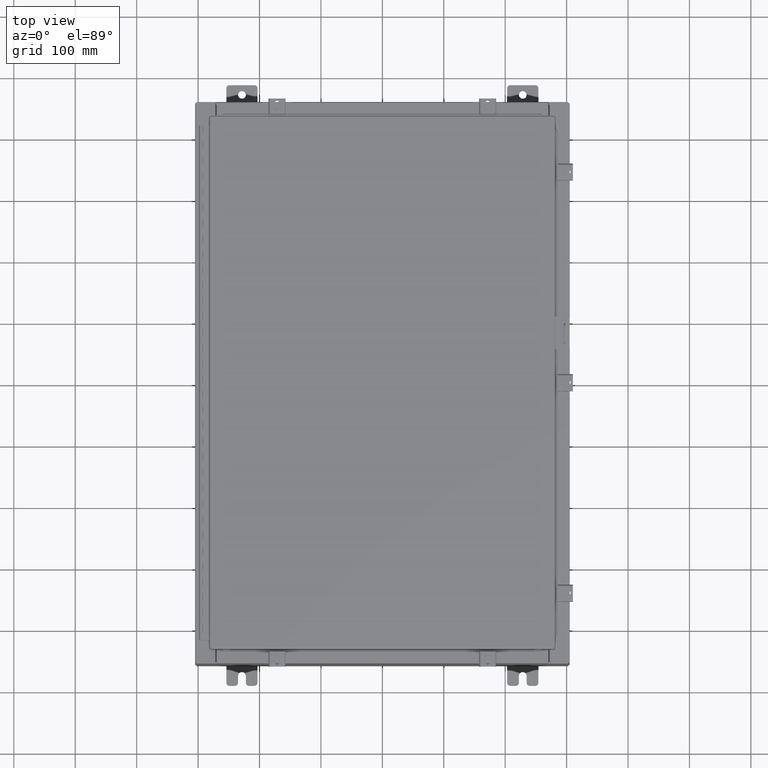
[diagram: clean part render]
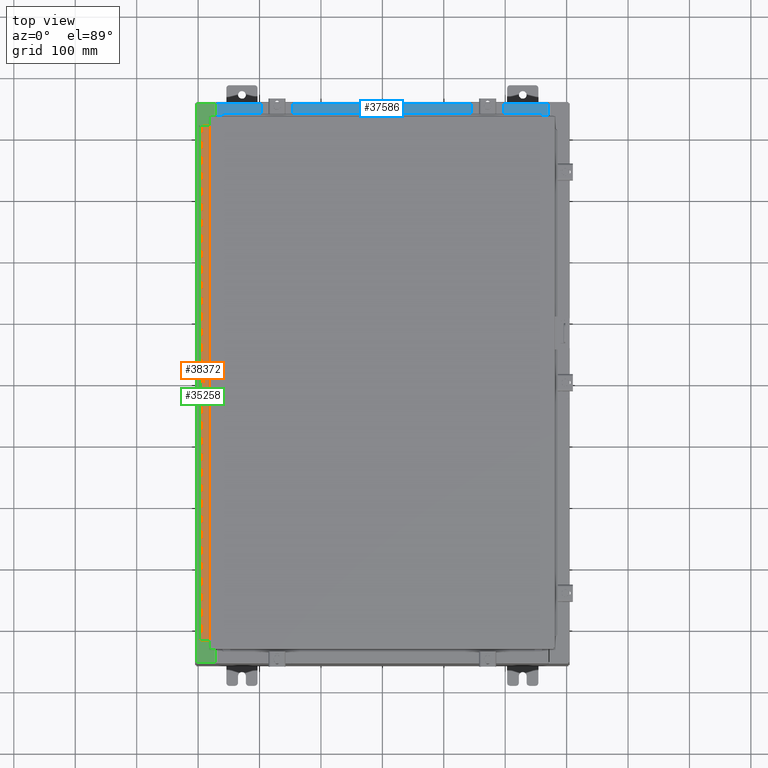
[diagram: same view with three faces highlighted in distinct colors, each labeled with its STEP entity id]
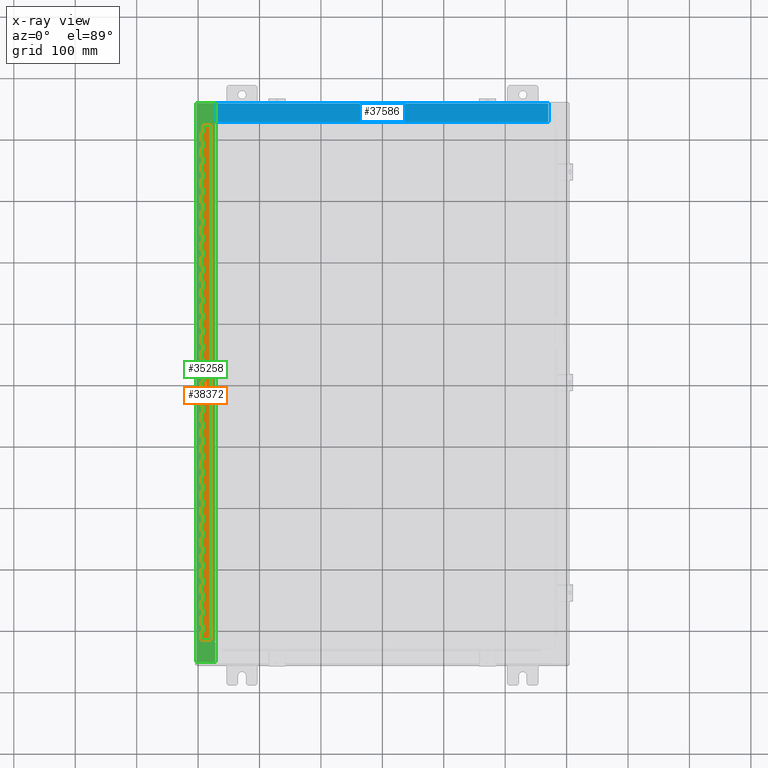
[diagram: x-ray of the same camera — body ghosted, the three highlighted faces saturated]
A machine part, top view with three faces highlighted in distinct colors.
The next image is the same camera in x-ray (body ghosted, the three faces saturated) — at least one of them is partly hidden behind the body in this view.
Their STEP definitions:

[orange] entity #38372 — the highlighted planar face has unit normal (-0, -0, 1).
#3 = DIRECTION ( 'NONE',  ( 3.389037039080723100E-015, 1.000000000000000000, -0.0000000000000000000 ) ) ;
#9 = LINE ( 'NONE', #13092, #33668 ) ;
#53 = DIRECTION ( 'NONE',  ( 3.389037039080723100E-015, 1.000000000000000000, -0.0000000000000000000 ) ) ;
#59 = VECTOR ( 'NONE', #6370, 39.37007874015748100 ) ;
#86 = CARTESIAN_POINT ( 'NONE',  ( -0.6869999999999982800, 0.5504999999999997700, -6.499999999999999100 ) ) ;
#91 = DIRECTION ( 'NONE',  ( 0.0000000000000000000, -0.0000000000000000000, -1.000000000000000000 ) ) ;
#106 = ORIENTED_EDGE ( 'NONE', *, *, #8318, .T. ) ;
#152 = CARTESIAN_POINT ( 'NONE',  ( -0.6869999999999978300, 0.6754999999999996600, -5.000000000000000000 ) ) ;
#167 = DIRECTION ( 'NONE',  ( -3.389037039080723100E-015, -1.000000000000000000, 0.0000000000000000000 ) ) ;
#177 = EDGE_CURVE ( 'NONE', #24791, #38932, #40802, .T. ) ;
#218 = EDGE_CURVE ( 'NONE', #17674, #30855, #22555, .T. ) ;
#365 = LINE ( 'NONE', #18825, #25334 ) ;
#369 = ORIENTED_EDGE ( 'NONE', *, *, #561, .T. ) ;
#384 = CARTESIAN_POINT ( 'NONE',  ( -0.6869999999999978300, 0.6754999999999996600, -33.00000000000000000 ) ) ;
#414 = VERTEX_POINT ( 'NONE', #12596 ) ;
#561 = EDGE_CURVE ( 'NONE', #23434, #5779, #28648, .T. ) ;
#633 = CARTESIAN_POINT ( 'NONE',  ( -0.6869999999999982800, 0.5504999999999997700, -17.00000000000000000 ) ) ;
#659 = DIRECTION ( 'NONE',  ( 0.0000000000000000000, -0.0000000000000000000, -1.000000000000000000 ) ) ;
#685 = VERTEX_POINT ( 'NONE', #20605 ) ;
#720 = VERTEX_POINT ( 'NONE', #37244 ) ;
#739 = CARTESIAN_POINT ( 'NONE',  ( -0.6869999999999978300, 0.6754999999999996600, -33.00000000000000000 ) ) ;
#775 = DIRECTION ( 'NONE',  ( 0.0000000000000000000, 0.0000000000000000000, 1.000000000000000000 ) ) ;
#777 = VECTOR ( 'NONE', #13977, 39.37007874015748100 ) ;
#808 = LINE ( 'NONE', #35103, #41554 ) ;
#917 = VECTOR ( 'NONE', #5546, 39.37007874015748100 ) ;
#936 = ORIENTED_EDGE ( 'NONE', *, *, #16269, .F. ) ;
#951 = VERTEX_POINT ( 'NONE', #12207 ) ;
#1048 = CARTESIAN_POINT ( 'NONE',  ( -0.6869999999999982800, 0.5504999999999997700, -7.499999999999999100 ) ) ;
#1072 = CARTESIAN_POINT ( 'NONE',  ( -0.6869999999999973900, 0.8004999999999995500, -17.00000000000000000 ) ) ;
#1126 = LINE ( 'NONE', #36163, #9768 ) ;
#1238 = VECTOR ( 'NONE', #5571, 39.37007874015748100 ) ;
#1240 = VERTEX_POINT ( 'NONE', #41414 ) ;
#1374 = ORIENTED_EDGE ( 'NONE', *, *, #24659, .F. ) ;
#1393 = DIRECTION ( 'NONE',  ( 3.389037039080723100E-015, 1.000000000000000000, -0.0000000000000000000 ) ) ;
#1404 = CARTESIAN_POINT ( 'NONE',  ( -0.6869999999999978300, 0.6754999999999996600, -22.00000000000000000 ) ) ;
#1421 = LINE ( 'NONE', #26489, #17726 ) ;
#1437 = CARTESIAN_POINT ( 'NONE',  ( -0.6869999999999978300, 0.6754999999999996600, -28.00000000000000000 ) ) ;
#1485 = VECTOR ( 'NONE', #33871, 39.37007874015748100 ) ;
#1509 = VERTEX_POINT ( 'NONE', #25829 ) ;
#1522 = VECTOR ( 'NONE', #33575, 39.37007874015748100 ) ;
#1585 = VERTEX_POINT ( 'NONE', #23405 ) ;
#1588 = LINE ( 'NONE', #1615, #9242 ) ;
#1615 = CARTESIAN_POINT ( 'NONE',  ( -0.6869999999999973900, 0.8004999999999995500, -6.499999999999999100 ) ) ;
#1638 = CARTESIAN_POINT ( 'NONE',  ( -0.6869999999999978300, 0.6754999999999996600, -31.00000000000000000 ) ) ;
#1658 = VECTOR ( 'NONE', #9393, 39.37007874015748100 ) ;
#1666 = DIRECTION ( 'NONE',  ( 0.0000000000000000000, -0.0000000000000000000, -1.000000000000000000 ) ) ;
#1771 = LINE ( 'NONE', #3107, #36468 ) ;
#1839 = VECTOR ( 'NONE', #11333, 39.37007874015748100 ) ;
#1880 = CARTESIAN_POINT ( 'NONE',  ( -0.6869999999999982800, 0.5504999999999997700, -6.499999999999999100 ) ) ;
#1966 = CARTESIAN_POINT ( 'NONE',  ( -0.6869999999999978300, 0.6754999999999996600, -3.500000000000000000 ) ) ;
#1984 = VECTOR ( 'NONE', #38592, 39.37007874015748100 ) ;
#1990 = EDGE_CURVE ( 'NONE', #11219, #36815, #9259, .T. ) ;
#2022 = ORIENTED_EDGE ( 'NONE', *, *, #4013, .T. ) ;
#2047 = EDGE_CURVE ( 'NONE', #19994, #15293, #6197, .T. ) ;
#2142 = LINE ( 'NONE', #13821, #35858 ) ;
#2160 = CARTESIAN_POINT ( 'NONE',  ( -0.6869999999999973900, 0.8004999999999995500, -15.50000000000000000 ) ) ;
#2177 = CARTESIAN_POINT ( 'NONE',  ( -0.6869999999999998300, 0.07549999999999991400, 0.0000000000000000000 ) ) ;
#2178 = DIRECTION ( 'NONE',  ( -3.389037039080723100E-015, -1.000000000000000000, 0.0000000000000000000 ) ) ;
#2236 = ORIENTED_EDGE ( 'NONE', *, *, #18097, .F. ) ;
#2275 = VECTOR ( 'NONE', #35279, 39.37007874015748100 ) ;
#2288 = EDGE_CURVE ( 'NONE', #5521, #24918, #40287, .T. ) ;
#2293 = VECTOR ( 'NONE', #3, 39.37007874015748100 ) ;
#2302 = CARTESIAN_POINT ( 'NONE',  ( -0.6869999999999982800, 0.5504999999999997700, -3.500000000000000000 ) ) ;
#2346 = CARTESIAN_POINT ( 'NONE',  ( -0.6869999999999978300, 0.6754999999999996600, -7.499999999999999100 ) ) ;
#2384 = LINE ( 'NONE', #39553, #25366 ) ;
#2429 = VECTOR ( 'NONE', #8597, 39.37007874015748100 ) ;
#2452 = ORIENTED_EDGE ( 'NONE', *, *, #18708, .F. ) ;
#2500 = VERTEX_POINT ( 'NONE', #13723 ) ;
#2522 = CARTESIAN_POINT ( 'NONE',  ( -0.6869999999999982800, 0.5504999999999997700, -2.500000000000000000 ) ) ;
#2587 = VECTOR ( 'NONE', #21472, 39.37007874015748100 ) ;
#2617 = CARTESIAN_POINT ( 'NONE',  ( -0.6869999999999982800, 0.5504999999999997700, -30.50000000000000400 ) ) ;
#2660 = EDGE_CURVE ( 'NONE', #11697, #21886, #34719, .T. ) ;
#2864 = ORIENTED_EDGE ( 'NONE', *, *, #41909, .F. ) ;
#2888 = CARTESIAN_POINT ( 'NONE',  ( -0.6869999999999982800, 0.5504999999999997700, -22.00000000000000000 ) ) ;
#2917 = CARTESIAN_POINT ( 'NONE',  ( -0.6869999999999978300, 0.6754999999999996600, -14.49999999999999800 ) ) ;
#2936 = ORIENTED_EDGE ( 'NONE', *, *, #8795, .F. ) ;
#2998 = VERTEX_POINT ( 'NONE', #10069 ) ;
#3026 = LINE ( 'NONE', #2160, #36715 ) ;
#3034 = DIRECTION ( 'NONE',  ( -3.389037039080723100E-015, -1.000000000000000000, 0.0000000000000000000 ) ) ;
#3084 = CARTESIAN_POINT ( 'NONE',  ( -0.6869999999999978300, 0.6754999999999996600, -33.00000000000000000 ) ) ;
#3107 = CARTESIAN_POINT ( 'NONE',  ( -0.6869999999999973900, 0.8004999999999995500, -12.49999999999999800 ) ) ;
#3125 = EDGE_CURVE ( 'NONE', #34164, #38795, #18328, .T. ) ;
#3146 = LINE ( 'NONE', #39880, #10809 ) ;
#3173 = VERTEX_POINT ( 'NONE', #6386 ) ;
#3267 = VERTEX_POINT ( 'NONE', #152 ) ;
#3321 = ORIENTED_EDGE ( 'NONE', *, *, #13239, .F. ) ;
#3327 = DIRECTION ( 'NONE',  ( 3.389037039080723100E-015, 1.000000000000000000, -0.0000000000000000000 ) ) ;
#3361 = EDGE_CURVE ( 'NONE', #1240, #3267, #27554, .T. ) ;
#3364 = DIRECTION ( 'NONE',  ( 0.0000000000000000000, 0.0000000000000000000, 1.000000000000000000 ) ) ;
#3439 = EDGE_CURVE ( 'NONE', #9810, #14073, #32113, .T. ) ;
#3462 = EDGE_CURVE ( 'NONE', #13734, #36815, #6054, .T. ) ;
#3469 = ORIENTED_EDGE ( 'NONE', *, *, #6906, .F. ) ;
#3476 = VECTOR ( 'NONE', #42078, 39.37007874015748100 ) ;
#3503 = CARTESIAN_POINT ( 'NONE',  ( -0.6869999999999978300, 0.6754999999999996600, -14.00000000000000000 ) ) ;
#3504 = DIRECTION ( 'NONE',  ( 0.0000000000000000000, 0.0000000000000000000, 1.000000000000000000 ) ) ;
#3598 = LINE ( 'NONE', #36678, #28619 ) ;
#3603 = VECTOR ( 'NONE', #31181, 39.37007874015748100 ) ;
#3632 = ORIENTED_EDGE ( 'NONE', *, *, #2288, .F. ) ;
#3769 = ORIENTED_EDGE ( 'NONE', *, *, #23081, .T. ) ;
#3836 = DIRECTION ( 'NONE',  ( -3.389037039080723100E-015, -1.000000000000000000, 0.0000000000000000000 ) ) ;
#3873 = VERTEX_POINT ( 'NONE', #12086 ) ;
#3936 = ORIENTED_EDGE ( 'NONE', *, *, #7597, .F. ) ;
#3974 = VERTEX_POINT ( 'NONE', #6418 ) ;
#3978 = CARTESIAN_POINT ( 'NONE',  ( -0.6869999999999982800, 0.5504999999999997700, -27.00000000000000000 ) ) ;
#3990 = DIRECTION ( 'NONE',  ( 0.0000000000000000000, 0.0000000000000000000, 1.000000000000000000 ) ) ;
#4013 = EDGE_CURVE ( 'NONE', #11467, #18001, #38615, .T. ) ;
#4016 = CARTESIAN_POINT ( 'NONE',  ( -0.6869999999999973900, 0.8004999999999995500, -28.00000000000000000 ) ) ;
#4137 = VERTEX_POINT ( 'NONE', #20670 ) ;
#4174 = DIRECTION ( 'NONE',  ( 0.0000000000000000000, -0.0000000000000000000, -1.000000000000000000 ) ) ;
#4220 = VECTOR ( 'NONE', #21872, 39.37007874015748100 ) ;
#4262 = EDGE_CURVE ( 'NONE', #25159, #5700, #6530, .T. ) ;
#4318 = ORIENTED_EDGE ( 'NONE', *, *, #37063, .F. ) ;
#4360 = EDGE_CURVE ( 'NONE', #33010, #27697, #10080, .T. ) ;
#4361 = LINE ( 'NONE', #34485, #20701 ) ;
#4412 = VECTOR ( 'NONE', #13287, 39.37007874015748100 ) ;
#4637 = VECTOR ( 'NONE', #9147, 39.37007874015748100 ) ;
#4728 = LINE ( 'NONE', #384, #29795 ) ;
#4729 = LINE ( 'NONE', #12138, #38359 ) ;
#4783 = ORIENTED_EDGE ( 'NONE', *, *, #38964, .F. ) ;
#4845 = LINE ( 'NONE', #7729, #12540 ) ;
#4899 = ORIENTED_EDGE ( 'NONE', *, *, #37271, .F. ) ;
#4903 = ORIENTED_EDGE ( 'NONE', *, *, #41966, .F. ) ;
#4909 = DIRECTION ( 'NONE',  ( -3.389037039080723100E-015, -1.000000000000000000, 0.0000000000000000000 ) ) ;
#5049 = LINE ( 'NONE', #5698, #37675 ) ;
#5162 = ORIENTED_EDGE ( 'NONE', *, *, #22005, .T. ) ;
#5181 = EDGE_CURVE ( 'NONE', #19433, #8260, #39027, .T. ) ;
#5270 = LINE ( 'NONE', #27072, #13967 ) ;
#5341 = CARTESIAN_POINT ( 'NONE',  ( -0.6869999999999982800, 0.5504999999999997700, -22.50000000000000000 ) ) ;
#5390 = EDGE_CURVE ( 'NONE', #8005, #10349, #40513, .T. ) ;
#5408 = CARTESIAN_POINT ( 'NONE',  ( -0.6869999999999973900, 0.8004999999999995500, -8.000000000000000000 ) ) ;
#5465 = VERTEX_POINT ( 'NONE', #6381 ) ;
#5469 = DIRECTION ( 'NONE',  ( -3.389037039080723100E-015, -1.000000000000000000, 0.0000000000000000000 ) ) ;
#5521 = VERTEX_POINT ( 'NONE', #25460 ) ;
#5546 = DIRECTION ( 'NONE',  ( 3.389037039080723100E-015, 1.000000000000000000, -0.0000000000000000000 ) ) ;
#5571 = DIRECTION ( 'NONE',  ( 0.0000000000000000000, 0.0000000000000000000, 1.000000000000000000 ) ) ;
#5585 = LINE ( 'NONE', #1072, #22985 ) ;
#5614 = CARTESIAN_POINT ( 'NONE',  ( -0.6869999999999973900, 0.8004999999999995500, -32.50000000000000000 ) ) ;
#5619 = ORIENTED_EDGE ( 'NONE', *, *, #10978, .F. ) ;
#5626 = CARTESIAN_POINT ( 'NONE',  ( -0.6869999999999973900, 0.8004999999999995500, -14.99999999999999800 ) ) ;
#5698 = CARTESIAN_POINT ( 'NONE',  ( -0.6869999999999973900, 0.8004999999999995500, -2.999999999999999600 ) ) ;
#5700 = VERTEX_POINT ( 'NONE', #34940 ) ;
#5766 = ORIENTED_EDGE ( 'NONE', *, *, #17839, .F. ) ;
#5772 = CARTESIAN_POINT ( 'NONE',  ( -0.6869999999999982800, 0.5504999999999997700, -20.50000000000000400 ) ) ;
#5779 = VERTEX_POINT ( 'NONE', #15530 ) ;
#5802 = EDGE_CURVE ( 'NONE', #33876, #18385, #18622, .T. ) ;
#5811 = DIRECTION ( 'NONE',  ( -3.389037039080723100E-015, -1.000000000000000000, 0.0000000000000000000 ) ) ;
#5842 = ORIENTED_EDGE ( 'NONE', *, *, #1990, .F. ) ;
#5847 = CARTESIAN_POINT ( 'NONE',  ( -0.6869999999999982800, 0.5504999999999997700, -21.50000000000000400 ) ) ;
#5875 = LINE ( 'NONE', #35046, #13556 ) ;
#5888 = VECTOR ( 'NONE', #29010, 39.37007874015748100 ) ;
#5899 = EDGE_CURVE ( 'NONE', #19433, #25159, #22206, .T. ) ;
#5900 = VECTOR ( 'NONE', #3990, 39.37007874015748100 ) ;
#6000 = ORIENTED_EDGE ( 'NONE', *, *, #30704, .F. ) ;
#6013 = ORIENTED_EDGE ( 'NONE', *, *, #10132, .F. ) ;
#6015 = EDGE_CURVE ( 'NONE', #3873, #18174, #1771, .T. ) ;
#6018 = CARTESIAN_POINT ( 'NONE',  ( -0.6869999999999978300, 0.6754999999999996600, -9.000000000000000000 ) ) ;
#6048 = DIRECTION ( 'NONE',  ( 0.0000000000000000000, -0.0000000000000000000, -1.000000000000000000 ) ) ;
#6054 = LINE ( 'NONE', #16626, #22416 ) ;
#6139 = VECTOR ( 'NONE', #23196, 39.37007874015748100 ) ;
#6197 = LINE ( 'NONE', #4016, #32240 ) ;
#6234 = DIRECTION ( 'NONE',  ( 0.0000000000000000000, -0.0000000000000000000, -1.000000000000000000 ) ) ;
#6251 = VERTEX_POINT ( 'NONE', #18381 ) ;
#6323 = CARTESIAN_POINT ( 'NONE',  ( -0.6869999999999978300, 0.6754999999999996600, -2.999999999999999600 ) ) ;
#6347 = LINE ( 'NONE', #41675, #22699 ) ;
#6355 = ORIENTED_EDGE ( 'NONE', *, *, #23700, .F. ) ;
#6370 = DIRECTION ( 'NONE',  ( 0.0000000000000000000, 0.0000000000000000000, 1.000000000000000000 ) ) ;
#6381 = CARTESIAN_POINT ( 'NONE',  ( -0.6869999999999978300, 0.6754999999999996600, -23.00000000000000000 ) ) ;
#6386 = CARTESIAN_POINT ( 'NONE',  ( -0.6869999999999982800, 0.5504999999999997700, -12.99999999999999800 ) ) ;
#6417 = EDGE_CURVE ( 'NONE', #21886, #2998, #40438, .T. ) ;
#6418 = CARTESIAN_POINT ( 'NONE',  ( -0.6869999999999982800, 0.5504999999999997700, -27.50000000000000000 ) ) ;
#6435 = ORIENTED_EDGE ( 'NONE', *, *, #3125, .T. ) ;
#6489 = ORIENTED_EDGE ( 'NONE', *, *, #24204, .F. ) ;
#6530 = LINE ( 'NONE', #28224, #12128 ) ;
#6630 = CARTESIAN_POINT ( 'NONE',  ( -0.6869999999999973900, 0.8004999999999995500, -14.49999999999999800 ) ) ;
#6735 = ORIENTED_EDGE ( 'NONE', *, *, #4262, .F. ) ;
#6756 = CARTESIAN_POINT ( 'NONE',  ( -0.6869999999999982800, 0.5504999999999997700, -22.50000000000000000 ) ) ;
#6763 = DIRECTION ( 'NONE',  ( 0.0000000000000000000, -0.0000000000000000000, -1.000000000000000000 ) ) ;
#6788 = ORIENTED_EDGE ( 'NONE', *, *, #19690, .T. ) ;
#6828 = LINE ( 'NONE', #6630, #34892 ) ;
#6906 = EDGE_CURVE ( 'NONE', #40183, #30182, #6828, .T. ) ;
#6911 = DIRECTION ( 'NONE',  ( 0.0000000000000000000, -0.0000000000000000000, -1.000000000000000000 ) ) ;
#6963 = CARTESIAN_POINT ( 'NONE',  ( -0.6869999999999982800, 0.5504999999999997700, -26.50000000000000400 ) ) ;
#7011 = LINE ( 'NONE', #17663, #32013 ) ;
#7015 = VERTEX_POINT ( 'NONE', #40768 ) ;
#7038 = DIRECTION ( 'NONE',  ( -3.389037039080723100E-015, -1.000000000000000000, 0.0000000000000000000 ) ) ;
#7096 = EDGE_CURVE ( 'NONE', #20589, #15183, #32330, .T. ) ;
#7104 = ORIENTED_EDGE ( 'NONE', *, *, #7096, .T. ) ;
#7132 = LINE ( 'NONE', #11156, #31120 ) ;
#7175 = DIRECTION ( 'NONE',  ( 0.0000000000000000000, 0.0000000000000000000, 1.000000000000000000 ) ) ;
#7177 = EDGE_CURVE ( 'NONE', #36884, #17218, #14946, .T. ) ;
#7192 = CARTESIAN_POINT ( 'NONE',  ( -0.6869999999999982800, 0.5504999999999997700, -24.50000000000000000 ) ) ;
#7225 = EDGE_CURVE ( 'NONE', #3974, #19994, #36871, .T. ) ;
#7243 = CARTESIAN_POINT ( 'NONE',  ( -0.6869999999999978300, 0.6754999999999996600, -29.99999999999999600 ) ) ;
#7267 = CARTESIAN_POINT ( 'NONE',  ( -0.6869999999999973900, 0.8004999999999995500, -26.00000000000000000 ) ) ;
#7275 = LINE ( 'NONE', #10694, #1658 ) ;
#7330 = FACE_OUTER_BOUND ( 'NONE', #38319, .T. ) ;
#7357 = EDGE_CURVE ( 'NONE', #14073, #27981, #41364, .T. ) ;
#7427 = VECTOR ( 'NONE', #31079, 39.37007874015748100 ) ;
#7597 = EDGE_CURVE ( 'NONE', #21056, #33992, #31255, .T. ) ;
#7601 = ORIENTED_EDGE ( 'NONE', *, *, #12108, .T. ) ;
#7638 = CARTESIAN_POINT ( 'NONE',  ( -0.6869999999999973900, 0.8004999999999995500, -10.50000000000000000 ) ) ;
#7694 = VECTOR ( 'NONE', #1393, 39.37007874015748100 ) ;
#7729 = CARTESIAN_POINT ( 'NONE',  ( -0.6869999999999982800, 0.5504999999999997700, -5.500000000000000000 ) ) ;
#7730 = CARTESIAN_POINT ( 'NONE',  ( -0.6869999999999978300, 0.6754999999999996600, -33.00000000000000000 ) ) ;
#7753 = EDGE_CURVE ( 'NONE', #17438, #21223, #27757, .T. ) ;
#7790 = VECTOR ( 'NONE', #31172, 39.37007874015748100 ) ;
#7851 = CARTESIAN_POINT ( 'NONE',  ( -0.6869999999999973900, 0.8004999999999995500, -4.000000000000000000 ) ) ;
#7865 = CARTESIAN_POINT ( 'NONE',  ( -0.6869999999999978300, 0.6754999999999996600, -0.5000000000000000000 ) ) ;
#7919 = CARTESIAN_POINT ( 'NONE',  ( -0.6869999999999973900, 0.8004999999999995500, -8.500000000000000000 ) ) ;
#7951 = ORIENTED_EDGE ( 'NONE', *, *, #40038, .F. ) ;
#7975 = ORIENTED_EDGE ( 'NONE', *, *, #19600, .F. ) ;
#8005 = VERTEX_POINT ( 'NONE', #14084 ) ;
#8081 = VERTEX_POINT ( 'NONE', #38004 ) ;
#8151 = VERTEX_POINT ( 'NONE', #34741 ) ;
#8219 = CARTESIAN_POINT ( 'NONE',  ( -0.6869999999999982800, 0.5504999999999997700, -19.50000000000000000 ) ) ;
#8260 = VERTEX_POINT ( 'NONE', #24747 ) ;
#8276 = EDGE_CURVE ( 'NONE', #18332, #27981, #10333, .T. ) ;
#8277 = ORIENTED_EDGE ( 'NONE', *, *, #41221, .F. ) ;
#8318 = EDGE_CURVE ( 'NONE', #3873, #21223, #7275, .T. ) ;
#8338 = ORIENTED_EDGE ( 'NONE', *, *, #38018, .F. ) ;
#8351 = ORIENTED_EDGE ( 'NONE', *, *, #31402, .F. ) ;
#8375 = VECTOR ( 'NONE', #11696, 39.37007874015748100 ) ;
#8424 = CARTESIAN_POINT ( 'NONE',  ( -0.6869999999999978300, 0.6754999999999996600, -28.50000000000000000 ) ) ;
#8517 = ORIENTED_EDGE ( 'NONE', *, *, #28806, .F. ) ;
#8523 = ORIENTED_EDGE ( 'NONE', *, *, #19523, .F. ) ;
#8580 = ORIENTED_EDGE ( 'NONE', *, *, #14818, .T. ) ;
#8597 = DIRECTION ( 'NONE',  ( 0.0000000000000000000, 0.0000000000000000000, 1.000000000000000000 ) ) ;
#8648 = CARTESIAN_POINT ( 'NONE',  ( -0.6869999999999982800, 0.5504999999999997700, -25.50000000000000400 ) ) ;
#8795 = EDGE_CURVE ( 'NONE', #18769, #11219, #17700, .T. ) ;
#8847 = VECTOR ( 'NONE', #167, 39.37007874015748100 ) ;
#8892 = ORIENTED_EDGE ( 'NONE', *, *, #11287, .T. ) ;
#9034 = EDGE_CURVE ( 'NONE', #720, #21795, #34529, .T. ) ;
#9055 = CARTESIAN_POINT ( 'NONE',  ( -0.6869999999999978300, 0.6754999999999996600, -33.00000000000000000 ) ) ;
#9098 = VERTEX_POINT ( 'NONE', #35792 ) ;
#9145 = EDGE_CURVE ( 'NONE', #31071, #27342, #14114, .T. ) ;
#9147 = DIRECTION ( 'NONE',  ( 0.0000000000000000000, 0.0000000000000000000, 1.000000000000000000 ) ) ;
#9148 = VERTEX_POINT ( 'NONE', #24466 ) ;
#9227 = DIRECTION ( 'NONE',  ( 0.0000000000000000000, 0.0000000000000000000, 1.000000000000000000 ) ) ;
#9238 = DIRECTION ( 'NONE',  ( 0.0000000000000000000, 0.0000000000000000000, 1.000000000000000000 ) ) ;
#9242 = VECTOR ( 'NONE', #24419, 39.37007874015748100 ) ;
#9259 = LINE ( 'NONE', #22184, #34261 ) ;
#9393 = DIRECTION ( 'NONE',  ( 0.0000000000000000000, 0.0000000000000000000, 1.000000000000000000 ) ) ;
#9396 = DIRECTION ( 'NONE',  ( 0.0000000000000000000, -0.0000000000000000000, -1.000000000000000000 ) ) ;
#9417 = LINE ( 'NONE', #30264, #777 ) ;
#9424 = VERTEX_POINT ( 'NONE', #12808 ) ;
#9572 = LINE ( 'NONE', #16557, #14160 ) ;
#9580 = VERTEX_POINT ( 'NONE', #21036 ) ;
#9646 = ORIENTED_EDGE ( 'NONE', *, *, #9145, .F. ) ;
#9684 = EDGE_CURVE ( 'NONE', #13734, #720, #36013, .T. ) ;
#9688 = ORIENTED_EDGE ( 'NONE', *, *, #21291, .T. ) ;
#9767 = CARTESIAN_POINT ( 'NONE',  ( -0.6869999999999978300, 0.6754999999999996600, -1.499999999999999800 ) ) ;
#9768 = VECTOR ( 'NONE', #13363, 39.37007874015748100 ) ;
#9810 = VERTEX_POINT ( 'NONE', #2302 ) ;
#9921 = CARTESIAN_POINT ( 'NONE',  ( -0.6869999999999982800, 0.5504999999999997700, -11.99999999999999800 ) ) ;
#9978 = VECTOR ( 'NONE', #17600, 39.37007874015748100 ) ;
#10069 = CARTESIAN_POINT ( 'NONE',  ( -0.6869999999999982800, 0.5504999999999997700, -21.00000000000000000 ) ) ;
#10080 = LINE ( 'NONE', #3084, #26432 ) ;
#10113 = VECTOR ( 'NONE', #28302, 39.37007874015748100 ) ;
#10132 = EDGE_CURVE ( 'NONE', #28122, #26842, #19663, .T. ) ;
#10189 = LINE ( 'NONE', #10747, #26554 ) ;
#10300 = CARTESIAN_POINT ( 'NONE',  ( -0.6869999999999973900, 0.8004999999999995500, -30.50000000000000400 ) ) ;
#10311 = CARTESIAN_POINT ( 'NONE',  ( -0.6869999999999978300, 0.6754999999999996600, -21.00000000000000000 ) ) ;
#10333 = LINE ( 'NONE', #22804, #25659 ) ;
#10344 = EDGE_CURVE ( 'NONE', #18332, #24791, #21159, .T. ) ;
#10349 = VERTEX_POINT ( 'NONE', #17967 ) ;
#10425 = CARTESIAN_POINT ( 'NONE',  ( -0.6869999999999973900, 0.8004999999999995500, -25.50000000000000400 ) ) ;
#10473 = VECTOR ( 'NONE', #4174, 39.37007874015748100 ) ;
#10505 = VECTOR ( 'NONE', #16895, 39.37007874015748100 ) ;
#10513 = DIRECTION ( 'NONE',  ( 3.389037039080723100E-015, 1.000000000000000000, -0.0000000000000000000 ) ) ;
#10536 = EDGE_CURVE ( 'NONE', #35664, #36970, #6347, .T. ) ;
#10591 = EDGE_CURVE ( 'NONE', #24451, #8005, #29332, .T. ) ;
#10683 = LINE ( 'NONE', #25543, #1984 ) ;
#10694 = CARTESIAN_POINT ( 'NONE',  ( -0.6869999999999978300, 0.6754999999999996600, -33.00000000000000000 ) ) ;
#10700 = EDGE_CURVE ( 'NONE', #36121, #36724, #18567, .T. ) ;
#10747 = CARTESIAN_POINT ( 'NONE',  ( -0.6869999999999973900, 0.8004999999999995500, -13.50000000000000000 ) ) ;
#10809 = VECTOR ( 'NONE', #36650, 39.37007874015748100 ) ;
#10861 = LINE ( 'NONE', #7919, #18505 ) ;
#10867 = VECTOR ( 'NONE', #6048, 39.37007874015748100 ) ;
#10920 = CARTESIAN_POINT ( 'NONE',  ( -0.6869999999999973900, 0.8004999999999995500, -22.50000000000000000 ) ) ;
#10921 = VECTOR ( 'NONE', #38039, 39.37007874015748100 ) ;
#10978 = EDGE_CURVE ( 'NONE', #11828, #11884, #23678, .T. ) ;
#11004 = DIRECTION ( 'NONE',  ( 0.0000000000000000000, -0.0000000000000000000, -1.000000000000000000 ) ) ;
#11031 = VECTOR ( 'NONE', #41844, 39.37007874015748100 ) ;
#11063 = VERTEX_POINT ( 'NONE', #31476 ) ;
#11104 = ORIENTED_EDGE ( 'NONE', *, *, #17634, .T. ) ;
#11127 = LINE ( 'NONE', #19368, #3476 ) ;
#11156 = CARTESIAN_POINT ( 'NONE',  ( -0.6869999999999978300, 0.6754999999999996600, -33.00000000000000000 ) ) ;
#11188 = CARTESIAN_POINT ( 'NONE',  ( -0.6869999999999982800, 0.5504999999999997700, -23.50000000000000000 ) ) ;
#11219 = VERTEX_POINT ( 'NONE', #28765 ) ;
#11287 = EDGE_CURVE ( 'NONE', #36121, #5465, #4729, .T. ) ;
#11291 = DIRECTION ( 'NONE',  ( 0.0000000000000000000, 0.0000000000000000000, 1.000000000000000000 ) ) ;
#11333 = DIRECTION ( 'NONE',  ( 3.389037039080723100E-015, 1.000000000000000000, -0.0000000000000000000 ) ) ;
#11360 = CARTESIAN_POINT ( 'NONE',  ( -0.6869999999999982800, 0.5504999999999997700, -14.00000000000000000 ) ) ;
#11394 = ORIENTED_EDGE ( 'NONE', *, *, #11599, .F. ) ;
#11452 = LINE ( 'NONE', #7267, #19115 ) ;
#11467 = VERTEX_POINT ( 'NONE', #22828 ) ;
#11491 = PLANE ( 'NONE',  #24993 ) ;
#11495 = LINE ( 'NONE', #26727, #28872 ) ;
#11536 = LINE ( 'NONE', #39649, #10505 ) ;
#11599 = EDGE_CURVE ( 'NONE', #34161, #2500, #2142, .T. ) ;
#11647 = DIRECTION ( 'NONE',  ( 3.369016658928398200E-015, 1.000000000000000000, 0.0000000000000000000 ) ) ;
#11696 = DIRECTION ( 'NONE',  ( 0.0000000000000000000, -0.0000000000000000000, -1.000000000000000000 ) ) ;
#11697 = VERTEX_POINT ( 'NONE', #27249 ) ;
#11731 = VERTEX_POINT ( 'NONE', #1404 ) ;
#11826 = EDGE_CURVE ( 'NONE', #9580, #17438, #28703, .T. ) ;
#11828 = VERTEX_POINT ( 'NONE', #40922 ) ;
#11837 = ORIENTED_EDGE ( 'NONE', *, *, #26614, .F. ) ;
#11864 = CARTESIAN_POINT ( 'NONE',  ( -0.6869999999999978300, 0.6754999999999996600, -4.000000000000000000 ) ) ;
#11869 = LINE ( 'NONE', #28437, #4220 ) ;
#11884 = VERTEX_POINT ( 'NONE', #15210 ) ;
#11935 = CARTESIAN_POINT ( 'NONE',  ( -0.6869999999999982800, 0.5504999999999997700, -1.000000000000000000 ) ) ;
#12029 = CARTESIAN_POINT ( 'NONE',  ( -0.6869999999999982800, 0.5504999999999997700, -5.000000000000000000 ) ) ;
#12086 = CARTESIAN_POINT ( 'NONE',  ( -0.6869999999999978300, 0.6754999999999996600, -12.49999999999999800 ) ) ;
#12103 = LINE ( 'NONE', #22886, #40098 ) ;
#12108 = EDGE_CURVE ( 'NONE', #25878, #14764, #18450, .T. ) ;
#12128 = VECTOR ( 'NONE', #36579, 39.37007874015748100 ) ;
#12138 = CARTESIAN_POINT ( 'NONE',  ( -0.6869999999999978300, 0.6754999999999996600, -33.00000000000000000 ) ) ;
#12161 = VECTOR ( 'NONE', #39768, 39.37007874015748100 ) ;
#12207 = CARTESIAN_POINT ( 'NONE',  ( -0.6869999999999982800, 0.5504999999999997700, -18.50000000000000000 ) ) ;
#12229 = DIRECTION ( 'NONE',  ( 3.389037039080723100E-015, 1.000000000000000000, -0.0000000000000000000 ) ) ;
#12282 = CARTESIAN_POINT ( 'NONE',  ( -0.6869999999999973900, 0.8004999999999995500, -21.50000000000000400 ) ) ;
#12376 = CARTESIAN_POINT ( 'NONE',  ( -0.6869999999999973900, 0.8004999999999995500, -28.99999999999999600 ) ) ;
#12456 = CARTESIAN_POINT ( 'NONE',  ( -0.6869999999999973900, 0.8004999999999995500, -2.500000000000000000 ) ) ;
#12499 = VECTOR ( 'NONE', #14679, 39.37007874015748100 ) ;
#12527 = CARTESIAN_POINT ( 'NONE',  ( -0.6869999999999982800, 0.5504999999999997700, -0.5000000000000000000 ) ) ;
#12540 = VECTOR ( 'NONE', #11004, 39.37007874015748100 ) ;
#12568 = LINE ( 'NONE', #739, #5900 ) ;
#12596 = CARTESIAN_POINT ( 'NONE',  ( -0.6869999999999978300, 0.6754999999999996600, -32.50000000000000000 ) ) ;
#12628 = VERTEX_POINT ( 'NONE', #6018 ) ;
#12659 = CARTESIAN_POINT ( 'NONE',  ( -0.6869999999999998300, 0.07549999999999991400, -33.00000000000000000 ) ) ;
#12668 = CARTESIAN_POINT ( 'NONE',  ( -0.6869999999999978300, 0.6754999999999996600, -33.00000000000000000 ) ) ;
#12669 = ORIENTED_EDGE ( 'NONE', *, *, #6417, .F. ) ;
#12729 = ORIENTED_EDGE ( 'NONE', *, *, #22481, .F. ) ;
#12808 = CARTESIAN_POINT ( 'NONE',  ( -0.6869999999999978300, 0.6754999999999996600, -15.50000000000000000 ) ) ;
#12907 = EDGE_CURVE ( 'NONE', #414, #36186, #16864, .T. ) ;
#12908 = LINE ( 'NONE', #10920, #30282 ) ;
#12912 = VECTOR ( 'NONE', #29038, 39.37007874015748100 ) ;
#13077 = CARTESIAN_POINT ( 'NONE',  ( -0.6869999999999978300, 0.6754999999999996600, -33.00000000000000000 ) ) ;
#13092 = CARTESIAN_POINT ( 'NONE',  ( -0.6869999999999973900, 0.8004999999999995500, -16.50000000000000000 ) ) ;
#13226 = EDGE_CURVE ( 'NONE', #11884, #38795, #27583, .T. ) ;
#13239 = EDGE_CURVE ( 'NONE', #17019, #31306, #10189, .T. ) ;
#13260 = ORIENTED_EDGE ( 'NONE', *, *, #22529, .F. ) ;
#13273 = CARTESIAN_POINT ( 'NONE',  ( -0.6869999999999978300, 0.6754999999999996600, -27.50000000000000000 ) ) ;
#13287 = DIRECTION ( 'NONE',  ( 0.0000000000000000000, -0.0000000000000000000, -1.000000000000000000 ) ) ;
#13314 = LINE ( 'NONE', #21473, #3603 ) ;
#13320 = CARTESIAN_POINT ( 'NONE',  ( -0.6869999999999982800, 0.5504999999999997700, -16.50000000000000000 ) ) ;
#13328 = VECTOR ( 'NONE', #16868, 39.37007874015748100 ) ;
#13332 = EDGE_CURVE ( 'NONE', #38888, #18385, #7132, .T. ) ;
#13363 = DIRECTION ( 'NONE',  ( 0.0000000000000000000, -0.0000000000000000000, -1.000000000000000000 ) ) ;
#13431 = VERTEX_POINT ( 'NONE', #8424 ) ;
#13516 = EDGE_CURVE ( 'NONE', #22267, #9580, #34223, .T. ) ;
#13527 = VECTOR ( 'NONE', #22105, 39.37007874015748100 ) ;
#13556 = VECTOR ( 'NONE', #12229, 39.37007874015748100 ) ;
#13558 = EDGE_CURVE ( 'NONE', #2500, #20422, #34670, .T. ) ;
#13659 = LINE ( 'NONE', #24677, #21317 ) ;
#13675 = VERTEX_POINT ( 'NONE', #16836 ) ;
#13723 = CARTESIAN_POINT ( 'NONE',  ( -0.6869999999999982800, 0.5504999999999997700, -20.00000000000000000 ) ) ;
#13734 = VERTEX_POINT ( 'NONE', #30261 ) ;
#13820 = CARTESIAN_POINT ( 'NONE',  ( -0.6869999999999973900, 0.8004999999999995500, -9.000000000000000000 ) ) ;
#13821 = CARTESIAN_POINT ( 'NONE',  ( -0.6869999999999982800, 0.5504999999999997700, -19.50000000000000000 ) ) ;
#13857 = VECTOR ( 'NONE', #35767, 39.37007874015748100 ) ;
#13858 = ORIENTED_EDGE ( 'NONE', *, *, #26141, .F. ) ;
#13885 = ORIENTED_EDGE ( 'NONE', *, *, #7225, .F. ) ;
#13886 = VECTOR ( 'NONE', #32584, 39.37007874015748100 ) ;
#13913 = VERTEX_POINT ( 'NONE', #31094 ) ;
#13967 = VECTOR ( 'NONE', #30348, 39.37007874015748100 ) ;
#13977 = DIRECTION ( 'NONE',  ( -3.389037039080723100E-015, -1.000000000000000000, 0.0000000000000000000 ) ) ;
#14023 = DIRECTION ( 'NONE',  ( -3.389037039080723100E-015, -1.000000000000000000, 0.0000000000000000000 ) ) ;
#14073 = VERTEX_POINT ( 'NONE', #27363 ) ;
#14084 = CARTESIAN_POINT ( 'NONE',  ( -0.6869999999999982800, 0.5504999999999997700, -32.00000000000000000 ) ) ;
#14114 = LINE ( 'NONE', #5341, #4412 ) ;
#14145 = LINE ( 'NONE', #22621, #39077 ) ;
#14160 = VECTOR ( 'NONE', #26406, 39.37007874015748100 ) ;
#14420 = CARTESIAN_POINT ( 'NONE',  ( -0.6869999999999978300, 0.6754999999999996600, -9.500000000000000000 ) ) ;
#14474 = ORIENTED_EDGE ( 'NONE', *, *, #3462, .T. ) ;
#14614 = EDGE_CURVE ( 'NONE', #1240, #1509, #18284, .T. ) ;
#14631 = CARTESIAN_POINT ( 'NONE',  ( -0.6869999999999982800, 0.5504999999999997700, -15.50000000000000000 ) ) ;
#14632 = CARTESIAN_POINT ( 'NONE',  ( -0.6869999999999978300, 0.6754999999999996600, -33.00000000000000000 ) ) ;
#14679 = DIRECTION ( 'NONE',  ( -3.389037039080723100E-015, -1.000000000000000000, 0.0000000000000000000 ) ) ;
#14764 = VERTEX_POINT ( 'NONE', #34561 ) ;
#14769 = CARTESIAN_POINT ( 'NONE',  ( -0.6870000000000022800, -0.6245000000000003900, -33.00000000000000000 ) ) ;
#14818 = EDGE_CURVE ( 'NONE', #8151, #24918, #37141, .T. ) ;
#14841 = EDGE_CURVE ( 'NONE', #38556, #40184, #36144, .T. ) ;
#14896 = VECTOR ( 'NONE', #6911, 39.37007874015748100 ) ;
#14931 = CARTESIAN_POINT ( 'NONE',  ( -0.6869999999999982800, 0.5504999999999997700, -11.50000000000000000 ) ) ;
#14946 = LINE ( 'NONE', #19755, #12912 ) ;
#15006 = DIRECTION ( 'NONE',  ( 3.389037039080723100E-015, 1.000000000000000000, -0.0000000000000000000 ) ) ;
#15073 = LINE ( 'NONE', #24497, #7427 ) ;
#15105 = CARTESIAN_POINT ( 'NONE',  ( -0.6869999999999978300, 0.6754999999999996600, -11.99999999999999800 ) ) ;
#15167 = LINE ( 'NONE', #28681, #31520 ) ;
#15178 = VERTEX_POINT ( 'NONE', #39890 ) ;
#15183 = VERTEX_POINT ( 'NONE', #33558 ) ;
#15210 = CARTESIAN_POINT ( 'NONE',  ( -0.6869999999999982800, 0.5504999999999997700, -16.00000000000000000 ) ) ;
#15272 = VERTEX_POINT ( 'NONE', #7865 ) ;
#15283 = CARTESIAN_POINT ( 'NONE',  ( -0.6869999999999982800, 0.5504999999999997700, -1.499999999999999800 ) ) ;
#15293 = VERTEX_POINT ( 'NONE', #1437 ) ;
#15299 = DIRECTION ( 'NONE',  ( -3.389037039080723100E-015, -1.000000000000000000, 0.0000000000000000000 ) ) ;
#15303 = DIRECTION ( 'NONE',  ( 3.389037039080723100E-015, 1.000000000000000000, -0.0000000000000000000 ) ) ;
#15474 = ORIENTED_EDGE ( 'NONE', *, *, #16971, .F. ) ;
#15530 = CARTESIAN_POINT ( 'NONE',  ( -0.6869999999999978300, 0.6754999999999996600, -17.99999999999999600 ) ) ;
#15567 = CARTESIAN_POINT ( 'NONE',  ( -0.6870000000000022800, -0.6245000000000003900, 0.0000000000000000000 ) ) ;
#15715 = LINE ( 'NONE', #21836, #40612 ) ;
#15855 = VECTOR ( 'NONE', #53, 39.37007874015748100 ) ;
#15993 = DIRECTION ( 'NONE',  ( -3.389037039080723100E-015, -1.000000000000000000, 0.0000000000000000000 ) ) ;
#16065 = ORIENTED_EDGE ( 'NONE', *, *, #27794, .F. ) ;
#16204 = CARTESIAN_POINT ( 'NONE',  ( -0.6869999999999978300, 0.6754999999999996600, -33.00000000000000000 ) ) ;
#16217 = LINE ( 'NONE', #12282, #41091 ) ;
#16269 = EDGE_CURVE ( 'NONE', #38888, #38545, #37401, .T. ) ;
#16450 = VECTOR ( 'NONE', #17917, 39.37007874015748100 ) ;
#16497 = CARTESIAN_POINT ( 'NONE',  ( -0.6869999999999978300, 0.6754999999999996600, -33.00000000000000000 ) ) ;
#16557 = CARTESIAN_POINT ( 'NONE',  ( -0.6869999999999982800, 0.5504999999999997700, -13.50000000000000000 ) ) ;
#16578 = ORIENTED_EDGE ( 'NONE', *, *, #13558, .F. ) ;
#16596 = ORIENTED_EDGE ( 'NONE', *, *, #10344, .F. ) ;
#16616 = CARTESIAN_POINT ( 'NONE',  ( -0.6869999999999973900, 0.8004999999999995500, -11.99999999999999800 ) ) ;
#16626 = CARTESIAN_POINT ( 'NONE',  ( -0.6869999999999978300, 0.6754999999999996600, -33.00000000000000000 ) ) ;
#16669 = ORIENTED_EDGE ( 'NONE', *, *, #20035, .F. ) ;
#16670 = ORIENTED_EDGE ( 'NONE', *, *, #10591, .F. ) ;
#16679 = DIRECTION ( 'NONE',  ( 0.0000000000000000000, 0.0000000000000000000, 1.000000000000000000 ) ) ;
#16732 = VECTOR ( 'NONE', #17688, 39.37007874015748100 ) ;
#16759 = DIRECTION ( 'NONE',  ( 3.389037039080723100E-015, 1.000000000000000000, -0.0000000000000000000 ) ) ;
#16802 = CARTESIAN_POINT ( 'NONE',  ( -0.6869999999999978300, 0.6754999999999996600, -4.500000000000000000 ) ) ;
#16821 = ORIENTED_EDGE ( 'NONE', *, *, #22115, .F. ) ;
#16836 = CARTESIAN_POINT ( 'NONE',  ( -0.6869999999999982800, 0.5504999999999997700, -29.50000000000000000 ) ) ;
#16864 = LINE ( 'NONE', #5614, #31160 ) ;
#16868 = DIRECTION ( 'NONE',  ( 3.389037039080723100E-015, 1.000000000000000000, -0.0000000000000000000 ) ) ;
#16895 = DIRECTION ( 'NONE',  ( -3.389037039080723100E-015, -1.000000000000000000, 0.0000000000000000000 ) ) ;
#16971 = EDGE_CURVE ( 'NONE', #9148, #12628, #27190, .T. ) ;
#17019 = VERTEX_POINT ( 'NONE', #23945 ) ;
#17062 = LINE ( 'NONE', #27253, #8375 ) ;
#17076 = ORIENTED_EDGE ( 'NONE', *, *, #22763, .T. ) ;
#17101 = DIRECTION ( 'NONE',  ( 3.389037039080723100E-015, 1.000000000000000000, -0.0000000000000000000 ) ) ;
#17218 = VERTEX_POINT ( 'NONE', #41196 ) ;
#17323 = CARTESIAN_POINT ( 'NONE',  ( -0.6869999999999978300, 0.6754999999999996600, -33.00000000000000000 ) ) ;
#17364 = LINE ( 'NONE', #19355, #59 ) ;
#17438 = VERTEX_POINT ( 'NONE', #9921 ) ;
#17446 = VERTEX_POINT ( 'NONE', #3503 ) ;
#17466 = EDGE_CURVE ( 'NONE', #18174, #3173, #1126, .T. ) ;
#17542 = CARTESIAN_POINT ( 'NONE',  ( -0.6869999999999982800, 0.5504999999999997700, -32.50000000000000000 ) ) ;
#17557 = VERTEX_POINT ( 'NONE', #26899 ) ;
#17599 = ORIENTED_EDGE ( 'NONE', *, *, #13332, .T. ) ;
#17600 = DIRECTION ( 'NONE',  ( -3.389037039080723100E-015, -1.000000000000000000, 0.0000000000000000000 ) ) ;
#17616 = VECTOR ( 'NONE', #29513, 39.37007874015748100 ) ;
#17634 = EDGE_CURVE ( 'NONE', #414, #10349, #22020, .T. ) ;
#17660 = EDGE_CURVE ( 'NONE', #30628, #29138, #28657, .T. ) ;
#17663 = CARTESIAN_POINT ( 'NONE',  ( -0.6869999999999973900, 0.8004999999999995500, -1.000000000000000000 ) ) ;
#17674 = VERTEX_POINT ( 'NONE', #34446 ) ;
#17688 = DIRECTION ( 'NONE',  ( 0.0000000000000000000, -0.0000000000000000000, -1.000000000000000000 ) ) ;
#17700 = LINE ( 'NONE', #29101, #25363 ) ;
#17726 = VECTOR ( 'NONE', #16759, 39.37007874015748100 ) ;
#17729 = CARTESIAN_POINT ( 'NONE',  ( -0.6869999999999978300, 0.6754999999999996600, -16.00000000000000000 ) ) ;
#17737 = DIRECTION ( 'NONE',  ( -3.389037039080723100E-015, -1.000000000000000000, 0.0000000000000000000 ) ) ;
#17746 = ORIENTED_EDGE ( 'NONE', *, *, #28112, .F. ) ;
#17831 = LINE ( 'NONE', #28792, #35232 ) ;
#17836 = CARTESIAN_POINT ( 'NONE',  ( -0.6869999999999982800, 0.5504999999999997700, -13.50000000000000000 ) ) ;
#17839 = EDGE_CURVE ( 'NONE', #31900, #9810, #23546, .T. ) ;
#17889 = CARTESIAN_POINT ( 'NONE',  ( -0.6869999999999982800, 0.5504999999999997700, -23.50000000000000000 ) ) ;
#17917 = DIRECTION ( 'NONE',  ( 0.0000000000000000000, 0.0000000000000000000, 1.000000000000000000 ) ) ;
#17967 = CARTESIAN_POINT ( 'NONE',  ( -0.6869999999999978300, 0.6754999999999996600, -32.00000000000000000 ) ) ;
#18001 = VERTEX_POINT ( 'NONE', #23306 ) ;
#18097 = EDGE_CURVE ( 'NONE', #8081, #8260, #3598, .T. ) ;
#18171 = CARTESIAN_POINT ( 'NONE',  ( -0.6869999999999973900, 0.8004999999999995500, -31.00000000000000000 ) ) ;
#18174 = VERTEX_POINT ( 'NONE', #32383 ) ;
#18284 = LINE ( 'NONE', #40211, #25972 ) ;
#18328 = LINE ( 'NONE', #12668, #19385 ) ;
#18332 = VERTEX_POINT ( 'NONE', #16802 ) ;
#18333 = LINE ( 'NONE', #35145, #34683 ) ;
#18335 = ORIENTED_EDGE ( 'NONE', *, *, #218, .F. ) ;
#18381 = CARTESIAN_POINT ( 'NONE',  ( -0.6869999999999978300, 0.6754999999999996600, -24.99999999999999600 ) ) ;
#18385 = VERTEX_POINT ( 'NONE', #7243 ) ;
#18450 = LINE ( 'NONE', #13077, #26132 ) ;
#18483 = VECTOR ( 'NONE', #30245, 39.37007874015748100 ) ;
#18505 = VECTOR ( 'NONE', #17737, 39.37007874015748100 ) ;
#18519 = DIRECTION ( 'NONE',  ( -3.389037039080723100E-015, -1.000000000000000000, 0.0000000000000000000 ) ) ;
#18567 = LINE ( 'NONE', #39132, #8847 ) ;
#18622 = LINE ( 'NONE', #32036, #26310 ) ;
#18708 = EDGE_CURVE ( 'NONE', #36551, #27931, #33168, .T. ) ;
#18769 = VERTEX_POINT ( 'NONE', #36026 ) ;
#18773 = EDGE_CURVE ( 'NONE', #37712, #17557, #30109, .T. ) ;
#18825 = CARTESIAN_POINT ( 'NONE',  ( -0.6869999999999978300, 0.6754999999999996600, -33.00000000000000000 ) ) ;
#19002 = ORIENTED_EDGE ( 'NONE', *, *, #37845, .F. ) ;
#19013 = VERTEX_POINT ( 'NONE', #24032 ) ;
#19031 = CARTESIAN_POINT ( 'NONE',  ( -0.6869999999999978300, 0.6754999999999996600, 0.0000000000000000000 ) ) ;
#19046 = EDGE_CURVE ( 'NONE', #36724, #23431, #40188, .T. ) ;
#19073 = VECTOR ( 'NONE', #7038, 39.37007874015748100 ) ;
#19074 = ORIENTED_EDGE ( 'NONE', *, *, #5899, .F. ) ;
#19115 = VECTOR ( 'NONE', #17101, 39.37007874015748100 ) ;
#19218 = EDGE_CURVE ( 'NONE', #33992, #17557, #39673, .T. ) ;
#19272 = CARTESIAN_POINT ( 'NONE',  ( -0.6869999999999973900, 0.8004999999999995500, -11.50000000000000000 ) ) ;
#19280 = CARTESIAN_POINT ( 'NONE',  ( -0.6869999999999982800, 0.5504999999999997700, -16.50000000000000000 ) ) ;
#19348 = VERTEX_POINT ( 'NONE', #32722 ) ;
#19355 = CARTESIAN_POINT ( 'NONE',  ( -0.6869999999999978300, 0.6754999999999996600, -33.00000000000000000 ) ) ;
#19365 = DIRECTION ( 'NONE',  ( 0.0000000000000000000, 0.0000000000000000000, 1.000000000000000000 ) ) ;
#19368 = CARTESIAN_POINT ( 'NONE',  ( -0.6869999999999973900, 0.8004999999999995500, -1.499999999999999800 ) ) ;
#19385 = VECTOR ( 'NONE', #29230, 39.37007874015748100 ) ;
#19433 = VERTEX_POINT ( 'NONE', #39598 ) ;
#19439 = ORIENTED_EDGE ( 'NONE', *, *, #37716, .T. ) ;
#19523 = EDGE_CURVE ( 'NONE', #29292, #11063, #29533, .T. ) ;
#19600 = EDGE_CURVE ( 'NONE', #36186, #31662, #25404, .T. ) ;
#19612 = LINE ( 'NONE', #15283, #10921 ) ;
#19663 = LINE ( 'NONE', #10425, #28332 ) ;
#19671 = ORIENTED_EDGE ( 'NONE', *, *, #21880, .F. ) ;
#19690 = EDGE_CURVE ( 'NONE', #17019, #31033, #13659, .T. ) ;
#19755 = CARTESIAN_POINT ( 'NONE',  ( -0.6869999999999973900, 0.8004999999999995500, -7.000000000000000000 ) ) ;
#19791 = EDGE_CURVE ( 'NONE', #17674, #31662, #35611, .T. ) ;
#19820 = VECTOR ( 'NONE', #20560, 39.37007874015748100 ) ;
#19850 = ORIENTED_EDGE ( 'NONE', *, *, #3361, .T. ) ;
#19906 = ORIENTED_EDGE ( 'NONE', *, *, #29878, .F. ) ;
#19909 = DIRECTION ( 'NONE',  ( 0.0000000000000000000, 0.0000000000000000000, 1.000000000000000000 ) ) ;
#19994 = VERTEX_POINT ( 'NONE', #22966 ) ;
#20035 = EDGE_CURVE ( 'NONE', #15272, #36416, #2384, .T. ) ;
#20127 = CARTESIAN_POINT ( 'NONE',  ( -0.6869999999999982800, 0.5504999999999997700, -33.00000000000000000 ) ) ;
#20137 = LINE ( 'NONE', #7192, #36448 ) ;
#20150 = VERTEX_POINT ( 'NONE', #20514 ) ;
#20205 = CARTESIAN_POINT ( 'NONE',  ( -0.6869999999999978300, 0.6754999999999996600, -33.00000000000000000 ) ) ;
#20290 = CARTESIAN_POINT ( 'NONE',  ( -0.6869999999999973900, 0.8004999999999995500, -18.50000000000000000 ) ) ;
#20383 = VERTEX_POINT ( 'NONE', #2346 ) ;
#20414 = CARTESIAN_POINT ( 'NONE',  ( -0.6869999999999982800, 0.5504999999999997700, -3.500000000000000000 ) ) ;
#20422 = VERTEX_POINT ( 'NONE', #22062 ) ;
#20435 = CARTESIAN_POINT ( 'NONE',  ( -0.6869999999999982800, 0.5504999999999997700, -30.50000000000000400 ) ) ;
#20505 = CARTESIAN_POINT ( 'NONE',  ( -0.6869999999999982800, 0.5504999999999997700, -10.50000000000000000 ) ) ;
#20514 = CARTESIAN_POINT ( 'NONE',  ( -0.6869999999999978300, 0.6754999999999996600, -26.00000000000000000 ) ) ;
#20551 = CARTESIAN_POINT ( 'NONE',  ( -0.6869999999999982800, 0.5504999999999997700, -4.500000000000000000 ) ) ;
#20560 = DIRECTION ( 'NONE',  ( 0.0000000000000000000, -0.0000000000000000000, -1.000000000000000000 ) ) ;
#20581 = DIRECTION ( 'NONE',  ( 3.389037039080723100E-015, 1.000000000000000000, -0.0000000000000000000 ) ) ;
#20589 = VERTEX_POINT ( 'NONE', #9767 ) ;
#20605 = CARTESIAN_POINT ( 'NONE',  ( -0.6869999999999978300, 0.6754999999999996600, -31.50000000000000400 ) ) ;
#20670 = CARTESIAN_POINT ( 'NONE',  ( -0.6869999999999978300, 0.6754999999999996600, -11.00000000000000000 ) ) ;
#20694 = EDGE_CURVE ( 'NONE', #685, #24451, #11536, .T. ) ;
#20701 = VECTOR ( 'NONE', #34770, 39.37007874015748100 ) ;
#20718 = CARTESIAN_POINT ( 'NONE',  ( -0.6869999999999982800, 0.5504999999999997700, -24.99999999999999600 ) ) ;
#20737 = LINE ( 'NONE', #25537, #11031 ) ;
#20750 = DIRECTION ( 'NONE',  ( -3.389037039080723100E-015, -1.000000000000000000, 0.0000000000000000000 ) ) ;
#20776 = LINE ( 'NONE', #26170, #37079 ) ;
#20851 = DIRECTION ( 'NONE',  ( 0.0000000000000000000, 0.0000000000000000000, 1.000000000000000000 ) ) ;
#20865 = CARTESIAN_POINT ( 'NONE',  ( -0.6869999999999982800, 0.5504999999999997700, -27.50000000000000000 ) ) ;
#20976 = CARTESIAN_POINT ( 'NONE',  ( -0.6869999999999982800, 0.5504999999999997700, -17.99999999999999600 ) ) ;
#20998 = VECTOR ( 'NONE', #33746, 39.37007874015748100 ) ;
#21036 = CARTESIAN_POINT ( 'NONE',  ( -0.6869999999999982800, 0.5504999999999997700, -11.50000000000000000 ) ) ;
#21039 = VECTOR ( 'NONE', #34480, 39.37007874015748100 ) ;
#21056 = VERTEX_POINT ( 'NONE', #37215 ) ;
#21067 = ORIENTED_EDGE ( 'NONE', *, *, #23471, .F. ) ;
#21122 = CARTESIAN_POINT ( 'NONE',  ( -0.6869999999999973900, 0.8004999999999995500, -4.500000000000000000 ) ) ;
#21136 = CARTESIAN_POINT ( 'NONE',  ( -0.6869999999999978300, 0.6754999999999996600, -33.00000000000000000 ) ) ;
#21159 = LINE ( 'NONE', #21122, #12499 ) ;
#21223 = VERTEX_POINT ( 'NONE', #15105 ) ;
#21287 = EDGE_CURVE ( 'NONE', #31900, #33192, #365, .T. ) ;
#21291 = EDGE_CURVE ( 'NONE', #11697, #20422, #808, .T. ) ;
#21317 = VECTOR ( 'NONE', #37465, 39.37007874015748100 ) ;
#21330 = ORIENTED_EDGE ( 'NONE', *, *, #36407, .F. ) ;
#21401 = VECTOR ( 'NONE', #3504, 39.37007874015748100 ) ;
#21472 = DIRECTION ( 'NONE',  ( 3.389037039080723100E-015, 1.000000000000000000, -0.0000000000000000000 ) ) ;
#21473 = CARTESIAN_POINT ( 'NONE',  ( -0.6869999999999973900, 0.8004999999999995500, -23.99999999999999600 ) ) ;
#21502 = CARTESIAN_POINT ( 'NONE',  ( -0.6869999999999982800, 0.5504999999999997700, -11.00000000000000000 ) ) ;
#21518 = CARTESIAN_POINT ( 'NONE',  ( -0.6869999999999982800, 0.5504999999999997700, -14.49999999999999800 ) ) ;
#21795 = VERTEX_POINT ( 'NONE', #21502 ) ;
#21836 = CARTESIAN_POINT ( 'NONE',  ( -0.6869999999999982800, 0.5504999999999997700, -28.50000000000000000 ) ) ;
#21872 = DIRECTION ( 'NONE',  ( 3.389037039080723100E-015, 1.000000000000000000, -0.0000000000000000000 ) ) ;
#21880 = EDGE_CURVE ( 'NONE', #22761, #6251, #5875, .T. ) ;
#21886 = VERTEX_POINT ( 'NONE', #5772 ) ;
#21891 = VECTOR ( 'NONE', #30750, 39.37007874015748100 ) ;
#22005 = EDGE_CURVE ( 'NONE', #13431, #15293, #30542, .T. ) ;
#22020 = LINE ( 'NONE', #17323, #20998 ) ;
#22062 = CARTESIAN_POINT ( 'NONE',  ( -0.6869999999999978300, 0.6754999999999996600, -20.00000000000000000 ) ) ;
#22105 = DIRECTION ( 'NONE',  ( -3.389037039080723100E-015, -1.000000000000000000, 0.0000000000000000000 ) ) ;
#22115 = EDGE_CURVE ( 'NONE', #39564, #40695, #1421, .T. ) ;
#22141 = VECTOR ( 'NONE', #22580, 39.37007874015748100 ) ;
#22184 = CARTESIAN_POINT ( 'NONE',  ( -0.6869999999999973900, 0.8004999999999995500, -10.00000000000000000 ) ) ;
#22206 = LINE ( 'NONE', #12456, #13527 ) ;
#22252 = DIRECTION ( 'NONE',  ( 0.0000000000000000000, -0.0000000000000000000, -1.000000000000000000 ) ) ;
#22267 = VERTEX_POINT ( 'NONE', #40334 ) ;
#22299 = LINE ( 'NONE', #7730, #37540 ) ;
#22380 = DIRECTION ( 'NONE',  ( 0.0000000000000000000, -0.0000000000000000000, -1.000000000000000000 ) ) ;
#22385 = DIRECTION ( 'NONE',  ( 0.0000000000000000000, -0.0000000000000000000, -1.000000000000000000 ) ) ;
#22394 = VECTOR ( 'NONE', #15303, 39.37007874015748100 ) ;
#22416 = VECTOR ( 'NONE', #32805, 39.37007874015748100 ) ;
#22421 = CARTESIAN_POINT ( 'NONE',  ( -0.6869999999999978300, 0.6754999999999996600, -25.50000000000000400 ) ) ;
#22481 = EDGE_CURVE ( 'NONE', #38817, #21056, #14145, .T. ) ;
#22523 = EDGE_CURVE ( 'NONE', #24914, #5779, #12103, .T. ) ;
#22529 = EDGE_CURVE ( 'NONE', #1585, #9148, #20776, .T. ) ;
#22555 = LINE ( 'NONE', #12659, #13857 ) ;
#22580 = DIRECTION ( 'NONE',  ( 0.0000000000000000000, -0.0000000000000000000, -1.000000000000000000 ) ) ;
#22621 = CARTESIAN_POINT ( 'NONE',  ( -0.6869999999999973900, 0.8004999999999995500, -26.50000000000000400 ) ) ;
#22699 = VECTOR ( 'NONE', #22252, 39.37007874015748100 ) ;
#22725 = VECTOR ( 'NONE', #31177, 39.37007874015748100 ) ;
#22761 = VERTEX_POINT ( 'NONE', #20718 ) ;
#22763 = EDGE_CURVE ( 'NONE', #15178, #37912, #22299, .T. ) ;
#22779 = ORIENTED_EDGE ( 'NONE', *, *, #5390, .F. ) ;
#22804 = CARTESIAN_POINT ( 'NONE',  ( -0.6869999999999978300, 0.6754999999999996600, -33.00000000000000000 ) ) ;
#22828 = CARTESIAN_POINT ( 'NONE',  ( -0.6869999999999978300, 0.6754999999999996600, -29.50000000000000000 ) ) ;
#22861 = ORIENTED_EDGE ( 'NONE', *, *, #2047, .F. ) ;
#22878 = CARTESIAN_POINT ( 'NONE',  ( -0.6869999999999978300, 0.6754999999999996600, -12.99999999999999800 ) ) ;
#22886 = CARTESIAN_POINT ( 'NONE',  ( -0.6869999999999973900, 0.8004999999999995500, -17.99999999999999600 ) ) ;
#22956 = ORIENTED_EDGE ( 'NONE', *, *, #3439, .F. ) ;
#22966 = CARTESIAN_POINT ( 'NONE',  ( -0.6869999999999982800, 0.5504999999999997700, -28.00000000000000000 ) ) ;
#22985 = VECTOR ( 'NONE', #20581, 39.37007874015748100 ) ;
#23081 = EDGE_CURVE ( 'NONE', #38556, #13913, #20737, .T. ) ;
#23196 = DIRECTION ( 'NONE',  ( -3.389037039080723100E-015, -1.000000000000000000, 0.0000000000000000000 ) ) ;
#23224 = ORIENTED_EDGE ( 'NONE', *, *, #5181, .T. ) ;
#23286 = EDGE_CURVE ( 'NONE', #9424, #27931, #12568, .T. ) ;
#23306 = CARTESIAN_POINT ( 'NONE',  ( -0.6869999999999978300, 0.6754999999999996600, -28.99999999999999600 ) ) ;
#23371 = DIRECTION ( 'NONE',  ( 0.0000000000000000000, 0.0000000000000000000, 1.000000000000000000 ) ) ;
#23405 = CARTESIAN_POINT ( 'NONE',  ( -0.6869999999999982800, 0.5504999999999997700, -8.500000000000000000 ) ) ;
#23409 = DIRECTION ( 'NONE',  ( 0.0000000000000000000, -0.0000000000000000000, -1.000000000000000000 ) ) ;
#23431 = VERTEX_POINT ( 'NONE', #40393 ) ;
#23434 = VERTEX_POINT ( 'NONE', #34067 ) ;
#23471 = EDGE_CURVE ( 'NONE', #27342, #5465, #15073, .T. ) ;
#23496 = ORIENTED_EDGE ( 'NONE', *, *, #36769, .F. ) ;
#23546 = LINE ( 'NONE', #38504, #39792 ) ;
#23552 = EDGE_CURVE ( 'NONE', #685, #29138, #4361, .T. ) ;
#23678 = LINE ( 'NONE', #14631, #31321 ) ;
#23700 = EDGE_CURVE ( 'NONE', #36416, #40103, #41498, .T. ) ;
#23739 = LINE ( 'NONE', #27902, #22725 ) ;
#23945 = CARTESIAN_POINT ( 'NONE',  ( -0.6869999999999978300, 0.6754999999999996600, -13.50000000000000000 ) ) ;
#24032 = CARTESIAN_POINT ( 'NONE',  ( -0.6869999999999978300, 0.6754999999999996600, -6.499999999999999100 ) ) ;
#24163 = LINE ( 'NONE', #19280, #22141 ) ;
#24196 = ORIENTED_EDGE ( 'NONE', *, *, #34302, .F. ) ;
#24204 = EDGE_CURVE ( 'NONE', #7015, #22761, #20137, .T. ) ;
#24419 = DIRECTION ( 'NONE',  ( -3.389037039080723100E-015, -1.000000000000000000, 0.0000000000000000000 ) ) ;
#24421 = VERTEX_POINT ( 'NONE', #1880 ) ;
#24451 = VERTEX_POINT ( 'NONE', #27871 ) ;
#24458 = VECTOR ( 'NONE', #25321, 39.37007874015748100 ) ;
#24466 = CARTESIAN_POINT ( 'NONE',  ( -0.6869999999999982800, 0.5504999999999997700, -9.000000000000000000 ) ) ;
#24488 = EDGE_CURVE ( 'NONE', #9098, #8081, #19612, .T. ) ;
#24497 = CARTESIAN_POINT ( 'NONE',  ( -0.6869999999999973900, 0.8004999999999995500, -23.00000000000000000 ) ) ;
#24500 = ORIENTED_EDGE ( 'NONE', *, *, #21287, .T. ) ;
#24515 = LINE ( 'NONE', #39371, #6139 ) ;
#24527 = EDGE_CURVE ( 'NONE', #20383, #17218, #27275, .T. ) ;
#24538 = ORIENTED_EDGE ( 'NONE', *, *, #32868, .F. ) ;
#24659 = EDGE_CURVE ( 'NONE', #29516, #33314, #24163, .T. ) ;
#24677 = CARTESIAN_POINT ( 'NONE',  ( -0.6869999999999978300, 0.6754999999999996600, -33.00000000000000000 ) ) ;
#24747 = CARTESIAN_POINT ( 'NONE',  ( -0.6869999999999978300, 0.6754999999999996600, -2.000000000000000000 ) ) ;
#24791 = VERTEX_POINT ( 'NONE', #20551 ) ;
#24830 = ORIENTED_EDGE ( 'NONE', *, *, #25532, .T. ) ;
#24914 = VERTEX_POINT ( 'NONE', #20976 ) ;
#24918 = VERTEX_POINT ( 'NONE', #40408 ) ;
#24991 = CARTESIAN_POINT ( 'NONE',  ( -0.6869999999999973900, 0.8004999999999995500, -17.50000000000000000 ) ) ;
#24993 = AXIS2_PLACEMENT_3D ( 'NONE', #14769, #31193, #11647 ) ;
#25024 = DIRECTION ( 'NONE',  ( 0.0000000000000000000, 0.0000000000000000000, 1.000000000000000000 ) ) ;
#25032 = LINE ( 'NONE', #34331, #7694 ) ;
#25135 = CARTESIAN_POINT ( 'NONE',  ( -0.6869999999999973900, 0.8004999999999995500, -27.00000000000000000 ) ) ;
#25150 = CARTESIAN_POINT ( 'NONE',  ( -0.6869999999999982800, 0.5504999999999997700, -28.50000000000000000 ) ) ;
#25159 = VERTEX_POINT ( 'NONE', #2522 ) ;
#25249 = DIRECTION ( 'NONE',  ( 0.0000000000000000000, 0.0000000000000000000, 1.000000000000000000 ) ) ;
#25254 = DIRECTION ( 'NONE',  ( 3.389037039080723100E-015, 1.000000000000000000, -0.0000000000000000000 ) ) ;
#25321 = DIRECTION ( 'NONE',  ( 3.389037039080723100E-015, 1.000000000000000000, -0.0000000000000000000 ) ) ;
#25334 = VECTOR ( 'NONE', #41535, 39.37007874015748100 ) ;
#25363 = VECTOR ( 'NONE', #27513, 39.37007874015748100 ) ;
#25366 = VECTOR ( 'NONE', #3836, 39.37007874015748100 ) ;
#25404 = LINE ( 'NONE', #17542, #16732 ) ;
#25417 = ORIENTED_EDGE ( 'NONE', *, *, #31199, .F. ) ;
#25451 = VECTOR ( 'NONE', #2178, 39.37007874015748100 ) ;
#25460 = CARTESIAN_POINT ( 'NONE',  ( -0.6869999999999982800, 0.5504999999999997700, -19.00000000000000000 ) ) ;
#25494 = CARTESIAN_POINT ( 'NONE',  ( -0.6869999999999978300, 0.6754999999999996600, -6.000000000000000900 ) ) ;
#25497 = ORIENTED_EDGE ( 'NONE', *, *, #18773, .T. ) ;
#25532 = EDGE_CURVE ( 'NONE', #38817, #20150, #26161, .T. ) ;
#25537 = CARTESIAN_POINT ( 'NONE',  ( -0.6869999999999978300, 0.6754999999999996600, -33.00000000000000000 ) ) ;
#25543 = CARTESIAN_POINT ( 'NONE',  ( -0.6869999999999973900, 0.8004999999999995500, -22.00000000000000000 ) ) ;
#25546 = VECTOR ( 'NONE', #15993, 39.37007874015748100 ) ;
#25659 = VECTOR ( 'NONE', #23371, 39.37007874015748100 ) ;
#25700 = VECTOR ( 'NONE', #10513, 39.37007874015748100 ) ;
#25709 = ORIENTED_EDGE ( 'NONE', *, *, #11826, .F. ) ;
#25829 = CARTESIAN_POINT ( 'NONE',  ( -0.6869999999999982800, 0.5504999999999997700, -5.500000000000000000 ) ) ;
#25878 = VERTEX_POINT ( 'NONE', #32900 ) ;
#25972 = VECTOR ( 'NONE', #20750, 39.37007874015748100 ) ;
#25993 = ORIENTED_EDGE ( 'NONE', *, *, #13226, .F. ) ;
#26008 = ORIENTED_EDGE ( 'NONE', *, *, #33216, .F. ) ;
#26056 = VECTOR ( 'NONE', #18519, 39.37007874015748100 ) ;
#26076 = CARTESIAN_POINT ( 'NONE',  ( -0.6869999999999982800, 0.5504999999999997700, -0.5000000000000000000 ) ) ;
#26132 = VECTOR ( 'NONE', #3364, 39.37007874015748100 ) ;
#26141 = EDGE_CURVE ( 'NONE', #19013, #24421, #1588, .T. ) ;
#26161 = LINE ( 'NONE', #14632, #16450 ) ;
#26170 = CARTESIAN_POINT ( 'NONE',  ( -0.6869999999999982800, 0.5504999999999997700, -8.500000000000000000 ) ) ;
#26189 = ORIENTED_EDGE ( 'NONE', *, *, #28050, .F. ) ;
#26225 = CARTESIAN_POINT ( 'NONE',  ( -0.6869999999999973900, 0.8004999999999995500, -27.50000000000000000 ) ) ;
#26310 = VECTOR ( 'NONE', #15006, 39.37007874015748100 ) ;
#26406 = DIRECTION ( 'NONE',  ( 0.0000000000000000000, -0.0000000000000000000, -1.000000000000000000 ) ) ;
#26432 = VECTOR ( 'NONE', #775, 39.37007874015748100 ) ;
#26489 = CARTESIAN_POINT ( 'NONE',  ( -0.6869999999999973900, 0.8004999999999995500, -6.000000000000000900 ) ) ;
#26511 = LINE ( 'NONE', #41155, #25451 ) ;
#26554 = VECTOR ( 'NONE', #14023, 39.37007874015748100 ) ;
#26614 = EDGE_CURVE ( 'NONE', #40184, #24914, #3146, .T. ) ;
#26727 = CARTESIAN_POINT ( 'NONE',  ( -0.6869999999999978300, 0.6754999999999996600, -33.00000000000000000 ) ) ;
#26842 = VERTEX_POINT ( 'NONE', #8648 ) ;
#26899 = CARTESIAN_POINT ( 'NONE',  ( -0.6869999999999978300, 0.6754999999999996600, -27.00000000000000000 ) ) ;
#26929 = ORIENTED_EDGE ( 'NONE', *, *, #34410, .T. ) ;
#26944 = VECTOR ( 'NONE', #38147, 39.37007874015748100 ) ;
#26948 = LINE ( 'NONE', #5408, #917 ) ;
#27024 = ORIENTED_EDGE ( 'NONE', *, *, #13516, .F. ) ;
#27072 = CARTESIAN_POINT ( 'NONE',  ( -0.6869999999999973900, 0.8004999999999995500, -11.00000000000000000 ) ) ;
#27190 = LINE ( 'NONE', #13820, #18483 ) ;
#27209 = ORIENTED_EDGE ( 'NONE', *, *, #30069, .F. ) ;
#27249 = CARTESIAN_POINT ( 'NONE',  ( -0.6869999999999978300, 0.6754999999999996600, -20.50000000000000400 ) ) ;
#27253 = CARTESIAN_POINT ( 'NONE',  ( -0.6869999999999982800, 0.5504999999999997700, -25.50000000000000400 ) ) ;
#27269 = ORIENTED_EDGE ( 'NONE', *, *, #40693, .T. ) ;
#27275 = LINE ( 'NONE', #31562, #1238 ) ;
#27282 = VECTOR ( 'NONE', #22385, 39.37007874015748100 ) ;
#27309 = EDGE_CURVE ( 'NONE', #23431, #14764, #13314, .T. ) ;
#27342 = VERTEX_POINT ( 'NONE', #34730 ) ;
#27354 = LINE ( 'NONE', #26225, #17616 ) ;
#27363 = CARTESIAN_POINT ( 'NONE',  ( -0.6869999999999982800, 0.5504999999999997700, -4.000000000000000000 ) ) ;
#27388 = CARTESIAN_POINT ( 'NONE',  ( -0.6869999999999973900, 0.8004999999999995500, -32.00000000000000000 ) ) ;
#27496 = LINE ( 'NONE', #20290, #12161 ) ;
#27501 = ORIENTED_EDGE ( 'NONE', *, *, #40291, .F. ) ;
#27513 = DIRECTION ( 'NONE',  ( 0.0000000000000000000, -0.0000000000000000000, -1.000000000000000000 ) ) ;
#27554 = LINE ( 'NONE', #38134, #1485 ) ;
#27583 = LINE ( 'NONE', #30309, #1522 ) ;
#27697 = VERTEX_POINT ( 'NONE', #10311 ) ;
#27715 = DIRECTION ( 'NONE',  ( 0.0000000000000000000, 0.0000000000000000000, 1.000000000000000000 ) ) ;
#27753 = ORIENTED_EDGE ( 'NONE', *, *, #17660, .F. ) ;
#27757 = LINE ( 'NONE', #16616, #25700 ) ;
#27767 = ORIENTED_EDGE ( 'NONE', *, *, #7357, .F. ) ;
#27794 = EDGE_CURVE ( 'NONE', #33314, #13913, #5585, .T. ) ;
#27848 = LINE ( 'NONE', #21136, #34453 ) ;
#27871 = CARTESIAN_POINT ( 'NONE',  ( -0.6869999999999982800, 0.5504999999999997700, -31.50000000000000400 ) ) ;
#27880 = ORIENTED_EDGE ( 'NONE', *, *, #29633, .F. ) ;
#27893 = CARTESIAN_POINT ( 'NONE',  ( -0.6869999999999982800, 0.5504999999999997700, -18.50000000000000000 ) ) ;
#27902 = CARTESIAN_POINT ( 'NONE',  ( -0.6869999999999973900, 0.8004999999999995500, -19.50000000000000000 ) ) ;
#27931 = VERTEX_POINT ( 'NONE', #40706 ) ;
#27981 = VERTEX_POINT ( 'NONE', #11864 ) ;
#28050 = EDGE_CURVE ( 'NONE', #5700, #33192, #5049, .T. ) ;
#28112 = EDGE_CURVE ( 'NONE', #36970, #11731, #10683, .T. ) ;
#28122 = VERTEX_POINT ( 'NONE', #22421 ) ;
#28224 = CARTESIAN_POINT ( 'NONE',  ( -0.6869999999999982800, 0.5504999999999997700, -2.500000000000000000 ) ) ;
#28257 = CARTESIAN_POINT ( 'NONE',  ( -0.6869999999999982800, 0.5504999999999997700, -6.000000000000000900 ) ) ;
#28302 = DIRECTION ( 'NONE',  ( -3.389037039080723100E-015, -1.000000000000000000, 0.0000000000000000000 ) ) ;
#28332 = VECTOR ( 'NONE', #39472, 39.37007874015748100 ) ;
#28369 = LINE ( 'NONE', #35777, #2293 ) ;
#28437 = CARTESIAN_POINT ( 'NONE',  ( -0.6869999999999973900, 0.8004999999999995500, -5.000000000000000000 ) ) ;
#28541 = DIRECTION ( 'NONE',  ( 0.0000000000000000000, 0.0000000000000000000, 1.000000000000000000 ) ) ;
#28619 = VECTOR ( 'NONE', #39911, 39.37007874015748100 ) ;
#28648 = LINE ( 'NONE', #28992, #4637 ) ;
#28657 = LINE ( 'NONE', #18171, #2587 ) ;
#28681 = CARTESIAN_POINT ( 'NONE',  ( -0.6869999999999978300, 0.6754999999999996600, -33.00000000000000000 ) ) ;
#28703 = LINE ( 'NONE', #14931, #21039 ) ;
#28765 = CARTESIAN_POINT ( 'NONE',  ( -0.6869999999999982800, 0.5504999999999997700, -10.00000000000000000 ) ) ;
#28792 = CARTESIAN_POINT ( 'NONE',  ( -0.6869999999999978300, 0.6754999999999996600, -33.00000000000000000 ) ) ;
#28806 = EDGE_CURVE ( 'NONE', #20589, #9098, #11127, .T. ) ;
#28854 = EDGE_CURVE ( 'NONE', #34164, #29516, #9, .T. ) ;
#28872 = VECTOR ( 'NONE', #7175, 39.37007874015748100 ) ;
#28992 = CARTESIAN_POINT ( 'NONE',  ( -0.6869999999999978300, 0.6754999999999996600, -33.00000000000000000 ) ) ;
#29010 = DIRECTION ( 'NONE',  ( 3.389037039080723100E-015, 1.000000000000000000, -0.0000000000000000000 ) ) ;
#29038 = DIRECTION ( 'NONE',  ( 3.389037039080723100E-015, 1.000000000000000000, -0.0000000000000000000 ) ) ;
#29058 = CARTESIAN_POINT ( 'NONE',  ( -0.6869999999999982800, 0.5504999999999997700, -26.00000000000000000 ) ) ;
#29101 = CARTESIAN_POINT ( 'NONE',  ( -0.6869999999999982800, 0.5504999999999997700, -9.500000000000000000 ) ) ;
#29138 = VERTEX_POINT ( 'NONE', #1638 ) ;
#29144 = VECTOR ( 'NONE', #41629, 39.37007874015748100 ) ;
#29230 = DIRECTION ( 'NONE',  ( 0.0000000000000000000, 0.0000000000000000000, 1.000000000000000000 ) ) ;
#29235 = ORIENTED_EDGE ( 'NONE', *, *, #20694, .F. ) ;
#29248 = ORIENTED_EDGE ( 'NONE', *, *, #12907, .F. ) ;
#29292 = VERTEX_POINT ( 'NONE', #31735 ) ;
#29332 = LINE ( 'NONE', #35523, #37914 ) ;
#29457 = CARTESIAN_POINT ( 'NONE',  ( -0.6869999999999982800, 0.5504999999999997700, -29.50000000000000000 ) ) ;
#29513 = DIRECTION ( 'NONE',  ( -3.389037039080723100E-015, -1.000000000000000000, 0.0000000000000000000 ) ) ;
#29516 = VERTEX_POINT ( 'NONE', #13320 ) ;
#29533 = LINE ( 'NONE', #1048, #19820 ) ;
#29629 = DIRECTION ( 'NONE',  ( 0.0000000000000000000, 0.0000000000000000000, 1.000000000000000000 ) ) ;
#29633 = EDGE_CURVE ( 'NONE', #36854, #31499, #15715, .T. ) ;
#29699 = CARTESIAN_POINT ( 'NONE',  ( -0.6869999999999978300, 0.6754999999999996600, -33.00000000000000000 ) ) ;
#29795 = VECTOR ( 'NONE', #19909, 39.37007874015748100 ) ;
#29878 = EDGE_CURVE ( 'NONE', #31306, #38337, #9572, .T. ) ;
#30040 = VECTOR ( 'NONE', #9227, 39.37007874015748100 ) ;
#30069 = EDGE_CURVE ( 'NONE', #40103, #15183, #7011, .T. ) ;
#30085 = ORIENTED_EDGE ( 'NONE', *, *, #7753, .F. ) ;
#30109 = LINE ( 'NONE', #16497, #21401 ) ;
#30182 = VERTEX_POINT ( 'NONE', #21518 ) ;
#30245 = DIRECTION ( 'NONE',  ( 3.389037039080723100E-015, 1.000000000000000000, -0.0000000000000000000 ) ) ;
#30261 = CARTESIAN_POINT ( 'NONE',  ( -0.6869999999999978300, 0.6754999999999996600, -10.50000000000000000 ) ) ;
#30264 = CARTESIAN_POINT ( 'NONE',  ( -0.6869999999999973900, 0.8004999999999995500, -28.50000000000000000 ) ) ;
#30282 = VECTOR ( 'NONE', #33754, 39.37007874015748100 ) ;
#30295 = ORIENTED_EDGE ( 'NONE', *, *, #23286, .T. ) ;
#30309 = CARTESIAN_POINT ( 'NONE',  ( -0.6869999999999973900, 0.8004999999999995500, -16.00000000000000000 ) ) ;
#30348 = DIRECTION ( 'NONE',  ( 3.389037039080723100E-015, 1.000000000000000000, -0.0000000000000000000 ) ) ;
#30443 = VECTOR ( 'NONE', #19365, 39.37007874015748100 ) ;
#30542 = LINE ( 'NONE', #16204, #38095 ) ;
#30628 = VERTEX_POINT ( 'NONE', #33756 ) ;
#30704 = EDGE_CURVE ( 'NONE', #3173, #31033, #36541, .T. ) ;
#30750 = DIRECTION ( 'NONE',  ( 0.0000000000000000000, -0.0000000000000000000, -1.000000000000000000 ) ) ;
#30789 = ORIENTED_EDGE ( 'NONE', *, *, #9034, .F. ) ;
#30791 = ORIENTED_EDGE ( 'NONE', *, *, #37788, .F. ) ;
#30855 = VERTEX_POINT ( 'NONE', #2177 ) ;
#30868 = VECTOR ( 'NONE', #16679, 39.37007874015748100 ) ;
#30887 = ORIENTED_EDGE ( 'NONE', *, *, #34910, .F. ) ;
#30896 = CARTESIAN_POINT ( 'NONE',  ( -0.6869999999999973900, 0.8004999999999995500, -12.99999999999999800 ) ) ;
#30948 = EDGE_CURVE ( 'NONE', #25878, #7015, #37027, .T. ) ;
#30959 = VERTEX_POINT ( 'NONE', #19031 ) ;
#31033 = VERTEX_POINT ( 'NONE', #22878 ) ;
#31071 = VERTEX_POINT ( 'NONE', #6756 ) ;
#31079 = DIRECTION ( 'NONE',  ( 3.389037039080723100E-015, 1.000000000000000000, -0.0000000000000000000 ) ) ;
#31094 = CARTESIAN_POINT ( 'NONE',  ( -0.6869999999999978300, 0.6754999999999996600, -17.00000000000000000 ) ) ;
#31120 = VECTOR ( 'NONE', #11291, 39.37007874015748100 ) ;
#31143 = EDGE_CURVE ( 'NONE', #19013, #40695, #11495, .T. ) ;
#31160 = VECTOR ( 'NONE', #5469, 39.37007874015748100 ) ;
#31172 = DIRECTION ( 'NONE',  ( 0.0000000000000000000, -0.0000000000000000000, -1.000000000000000000 ) ) ;
#31177 = DIRECTION ( 'NONE',  ( -3.389037039080723100E-015, -1.000000000000000000, 0.0000000000000000000 ) ) ;
#31181 = DIRECTION ( 'NONE',  ( 3.389037039080723100E-015, 1.000000000000000000, -0.0000000000000000000 ) ) ;
#31193 = DIRECTION ( 'NONE',  ( 1.000000000000000000, -3.369016658928398200E-015, 0.0000000000000000000 ) ) ;
#31199 = EDGE_CURVE ( 'NONE', #38545, #30628, #35514, .T. ) ;
#31248 = LINE ( 'NONE', #86, #13886 ) ;
#31255 = LINE ( 'NONE', #6963, #14896 ) ;
#31257 = ORIENTED_EDGE ( 'NONE', *, *, #19791, .T. ) ;
#31266 = ORIENTED_EDGE ( 'NONE', *, *, #41603, .F. ) ;
#31284 = VERTEX_POINT ( 'NONE', #14420 ) ;
#31294 = VECTOR ( 'NONE', #25024, 39.37007874015748100 ) ;
#31306 = VERTEX_POINT ( 'NONE', #17836 ) ;
#31321 = VECTOR ( 'NONE', #1666, 39.37007874015748100 ) ;
#31402 = EDGE_CURVE ( 'NONE', #30855, #30959, #36987, .T. ) ;
#31444 = CARTESIAN_POINT ( 'NONE',  ( -0.6869999999999978300, 0.6754999999999996600, -33.00000000000000000 ) ) ;
#31476 = CARTESIAN_POINT ( 'NONE',  ( -0.6869999999999982800, 0.5504999999999997700, -8.000000000000000000 ) ) ;
#31499 = VERTEX_POINT ( 'NONE', #38886 ) ;
#31520 = VECTOR ( 'NONE', #41687, 39.37007874015748100 ) ;
#31562 = CARTESIAN_POINT ( 'NONE',  ( -0.6869999999999978300, 0.6754999999999996600, -33.00000000000000000 ) ) ;
#31662 = VERTEX_POINT ( 'NONE', #20127 ) ;
#31687 = EDGE_CURVE ( 'NONE', #13431, #36854, #9417, .T. ) ;
#31735 = CARTESIAN_POINT ( 'NONE',  ( -0.6869999999999982800, 0.5504999999999997700, -7.499999999999999100 ) ) ;
#31738 = CARTESIAN_POINT ( 'NONE',  ( -0.6869999999999982800, 0.5504999999999997700, -7.000000000000000000 ) ) ;
#31862 = DIRECTION ( 'NONE',  ( -3.389037039080723100E-015, -1.000000000000000000, 0.0000000000000000000 ) ) ;
#31869 = ORIENTED_EDGE ( 'NONE', *, *, #177, .F. ) ;
#31873 = VECTOR ( 'NONE', #32235, 39.37007874015748100 ) ;
#31893 = LINE ( 'NONE', #29699, #30868 ) ;
#31900 = VERTEX_POINT ( 'NONE', #1966 ) ;
#31934 = ORIENTED_EDGE ( 'NONE', *, *, #6015, .F. ) ;
#32003 = CARTESIAN_POINT ( 'NONE',  ( -0.6869999999999973900, 0.8004999999999995500, -24.50000000000000000 ) ) ;
#32013 = VECTOR ( 'NONE', #37181, 39.37007874015748100 ) ;
#32036 = CARTESIAN_POINT ( 'NONE',  ( -0.6869999999999973900, 0.8004999999999995500, -29.99999999999999600 ) ) ;
#32113 = LINE ( 'NONE', #20414, #34139 ) ;
#32162 = CARTESIAN_POINT ( 'NONE',  ( -0.6869999999999973900, 0.8004999999999995500, -19.00000000000000000 ) ) ;
#32235 = DIRECTION ( 'NONE',  ( 0.0000000000000000000, -0.0000000000000000000, -1.000000000000000000 ) ) ;
#32240 = VECTOR ( 'NONE', #38366, 39.37007874015748100 ) ;
#32330 = LINE ( 'NONE', #33308, #31294 ) ;
#32342 = EDGE_CURVE ( 'NONE', #21795, #4137, #5270, .T. ) ;
#32383 = CARTESIAN_POINT ( 'NONE',  ( -0.6869999999999982800, 0.5504999999999997700, -12.49999999999999800 ) ) ;
#32584 = DIRECTION ( 'NONE',  ( 0.0000000000000000000, -0.0000000000000000000, -1.000000000000000000 ) ) ;
#32645 = VERTEX_POINT ( 'NONE', #29058 ) ;
#32722 = CARTESIAN_POINT ( 'NONE',  ( -0.6869999999999978300, 0.6754999999999996600, -22.50000000000000000 ) ) ;
#32796 = EDGE_CURVE ( 'NONE', #19348, #31071, #12908, .T. ) ;
#32805 = DIRECTION ( 'NONE',  ( 0.0000000000000000000, 0.0000000000000000000, 1.000000000000000000 ) ) ;
#32868 = EDGE_CURVE ( 'NONE', #15178, #1585, #10861, .T. ) ;
#32900 = CARTESIAN_POINT ( 'NONE',  ( -0.6869999999999978300, 0.6754999999999996600, -24.50000000000000000 ) ) ;
#32940 = EDGE_CURVE ( 'NONE', #951, #5521, #34839, .T. ) ;
#33010 = VERTEX_POINT ( 'NONE', #38060 ) ;
#33138 = ORIENTED_EDGE ( 'NONE', *, *, #2660, .F. ) ;
#33168 = LINE ( 'NONE', #5626, #24458 ) ;
#33192 = VERTEX_POINT ( 'NONE', #6323 ) ;
#33216 = EDGE_CURVE ( 'NONE', #24421, #36884, #31248, .T. ) ;
#33308 = CARTESIAN_POINT ( 'NONE',  ( -0.6869999999999978300, 0.6754999999999996600, -33.00000000000000000 ) ) ;
#33314 = VERTEX_POINT ( 'NONE', #633 ) ;
#33347 = CARTESIAN_POINT ( 'NONE',  ( -0.6869999999999982800, 0.5504999999999997700, -14.99999999999999800 ) ) ;
#33476 = ORIENTED_EDGE ( 'NONE', *, *, #36460, .F. ) ;
#33533 = VECTOR ( 'NONE', #23409, 39.37007874015748100 ) ;
#33558 = CARTESIAN_POINT ( 'NONE',  ( -0.6869999999999978300, 0.6754999999999996600, -1.000000000000000000 ) ) ;
#33575 = DIRECTION ( 'NONE',  ( 3.389037039080723100E-015, 1.000000000000000000, -0.0000000000000000000 ) ) ;
#33668 = VECTOR ( 'NONE', #39256, 39.37007874015748100 ) ;
#33746 = DIRECTION ( 'NONE',  ( 0.0000000000000000000, 0.0000000000000000000, 1.000000000000000000 ) ) ;
#33754 = DIRECTION ( 'NONE',  ( -3.389037039080723100E-015, -1.000000000000000000, 0.0000000000000000000 ) ) ;
#33756 = CARTESIAN_POINT ( 'NONE',  ( -0.6869999999999982800, 0.5504999999999997700, -31.00000000000000000 ) ) ;
#33871 = DIRECTION ( 'NONE',  ( 0.0000000000000000000, 0.0000000000000000000, 1.000000000000000000 ) ) ;
#33876 = VERTEX_POINT ( 'NONE', #39431 ) ;
#33992 = VERTEX_POINT ( 'NONE', #3978 ) ;
#34016 = DIRECTION ( 'NONE',  ( 0.0000000000000000000, -0.0000000000000000000, -1.000000000000000000 ) ) ;
#34067 = CARTESIAN_POINT ( 'NONE',  ( -0.6869999999999978300, 0.6754999999999996600, -18.50000000000000000 ) ) ;
#34139 = VECTOR ( 'NONE', #22380, 39.37007874015748100 ) ;
#34151 = CARTESIAN_POINT ( 'NONE',  ( -0.6869999999999978300, 0.6754999999999996600, -26.50000000000000400 ) ) ;
#34161 = VERTEX_POINT ( 'NONE', #8219 ) ;
#34164 = VERTEX_POINT ( 'NONE', #37554 ) ;
#34223 = LINE ( 'NONE', #19272, #25546 ) ;
#34261 = VECTOR ( 'NONE', #36704, 39.37007874015748100 ) ;
#34302 = EDGE_CURVE ( 'NONE', #31499, #18001, #37738, .T. ) ;
#34331 = CARTESIAN_POINT ( 'NONE',  ( -0.6869999999999973900, 0.8004999999999995500, -21.00000000000000000 ) ) ;
#34410 = EDGE_CURVE ( 'NONE', #31284, #12628, #17364, .T. ) ;
#34446 = CARTESIAN_POINT ( 'NONE',  ( -0.6869999999999998300, 0.07549999999999991400, -33.00000000000000000 ) ) ;
#34453 = VECTOR ( 'NONE', #27715, 39.37007874015748100 ) ;
#34480 = DIRECTION ( 'NONE',  ( 0.0000000000000000000, -0.0000000000000000000, -1.000000000000000000 ) ) ;
#34485 = CARTESIAN_POINT ( 'NONE',  ( -0.6869999999999978300, 0.6754999999999996600, -33.00000000000000000 ) ) ;
#34529 = LINE ( 'NONE', #20505, #33533 ) ;
#34539 = ORIENTED_EDGE ( 'NONE', *, *, #31687, .F. ) ;
#34561 = CARTESIAN_POINT ( 'NONE',  ( -0.6869999999999978300, 0.6754999999999996600, -23.99999999999999600 ) ) ;
#34612 = ORIENTED_EDGE ( 'NONE', *, *, #14841, .F. ) ;
#34639 = CARTESIAN_POINT ( 'NONE',  ( -0.6869999999999982800, 0.5504999999999997700, -32.50000000000000000 ) ) ;
#34648 = CARTESIAN_POINT ( 'NONE',  ( -0.6869999999999973900, 0.8004999999999995500, -20.50000000000000400 ) ) ;
#34670 = LINE ( 'NONE', #42127, #15855 ) ;
#34683 = VECTOR ( 'NONE', #31862, 39.37007874015748100 ) ;
#34719 = LINE ( 'NONE', #34648, #26056 ) ;
#34730 = CARTESIAN_POINT ( 'NONE',  ( -0.6869999999999982800, 0.5504999999999997700, -23.00000000000000000 ) ) ;
#34741 = CARTESIAN_POINT ( 'NONE',  ( -0.6869999999999978300, 0.6754999999999996600, -19.50000000000000000 ) ) ;
#34770 = DIRECTION ( 'NONE',  ( 0.0000000000000000000, 0.0000000000000000000, 1.000000000000000000 ) ) ;
#34831 = EDGE_CURVE ( 'NONE', #9424, #11828, #3026, .T. ) ;
#34839 = LINE ( 'NONE', #27893, #7790 ) ;
#34872 = ORIENTED_EDGE ( 'NONE', *, *, #41982, .T. ) ;
#34892 = VECTOR ( 'NONE', #4909, 39.37007874015748100 ) ;
#34910 = EDGE_CURVE ( 'NONE', #11467, #13675, #18333, .T. ) ;
#34940 = CARTESIAN_POINT ( 'NONE',  ( -0.6869999999999982800, 0.5504999999999997700, -2.999999999999999600 ) ) ;
#34968 = DIRECTION ( 'NONE',  ( 0.0000000000000000000, -0.0000000000000000000, -1.000000000000000000 ) ) ;
#34979 = ORIENTED_EDGE ( 'NONE', *, *, #22523, .F. ) ;
#35046 = CARTESIAN_POINT ( 'NONE',  ( -0.6869999999999973900, 0.8004999999999995500, -24.99999999999999600 ) ) ;
#35060 = CARTESIAN_POINT ( 'NONE',  ( -0.6869999999999982800, 0.5504999999999997700, -4.500000000000000000 ) ) ;
#35103 = CARTESIAN_POINT ( 'NONE',  ( -0.6869999999999978300, 0.6754999999999996600, -33.00000000000000000 ) ) ;
#35105 = DIRECTION ( 'NONE',  ( -3.389037039080723100E-015, -1.000000000000000000, 0.0000000000000000000 ) ) ;
#35145 = CARTESIAN_POINT ( 'NONE',  ( -0.6869999999999973900, 0.8004999999999995500, -29.50000000000000000 ) ) ;
#35156 = DIRECTION ( 'NONE',  ( -3.389037039080723100E-015, -1.000000000000000000, 0.0000000000000000000 ) ) ;
#35221 = ORIENTED_EDGE ( 'NONE', *, *, #34831, .F. ) ;
#35232 = VECTOR ( 'NONE', #9238, 39.37007874015748100 ) ;
#35279 = DIRECTION ( 'NONE',  ( 3.369016658928398200E-015, 1.000000000000000000, 0.0000000000000000000 ) ) ;
#35514 = LINE ( 'NONE', #20435, #10473 ) ;
#35523 = CARTESIAN_POINT ( 'NONE',  ( -0.6869999999999982800, 0.5504999999999997700, -31.50000000000000400 ) ) ;
#35602 = CARTESIAN_POINT ( 'NONE',  ( -0.6869999999999982800, 0.5504999999999997700, -17.50000000000000000 ) ) ;
#35611 = LINE ( 'NONE', #41235, #26944 ) ;
#35664 = VERTEX_POINT ( 'NONE', #5847 ) ;
#35767 = DIRECTION ( 'NONE',  ( 0.0000000000000000000, 0.0000000000000000000, 1.000000000000000000 ) ) ;
#35777 = CARTESIAN_POINT ( 'NONE',  ( -0.6869999999999973900, 0.8004999999999995500, -14.00000000000000000 ) ) ;
#35792 = CARTESIAN_POINT ( 'NONE',  ( -0.6869999999999982800, 0.5504999999999997700, -1.499999999999999800 ) ) ;
#35835 = ORIENTED_EDGE ( 'NONE', *, *, #9684, .F. ) ;
#35858 = VECTOR ( 'NONE', #36621, 39.37007874015748100 ) ;
#36013 = LINE ( 'NONE', #7638, #9978 ) ;
#36021 = VECTOR ( 'NONE', #35156, 39.37007874015748100 ) ;
#36026 = CARTESIAN_POINT ( 'NONE',  ( -0.6869999999999982800, 0.5504999999999997700, -9.500000000000000000 ) ) ;
#36103 = ORIENTED_EDGE ( 'NONE', *, *, #10700, .F. ) ;
#36121 = VERTEX_POINT ( 'NONE', #37443 ) ;
#36144 = LINE ( 'NONE', #24991, #10113 ) ;
#36163 = CARTESIAN_POINT ( 'NONE',  ( -0.6869999999999982800, 0.5504999999999997700, -12.49999999999999800 ) ) ;
#36186 = VERTEX_POINT ( 'NONE', #34639 ) ;
#36331 = VECTOR ( 'NONE', #34016, 39.37007874015748100 ) ;
#36407 = EDGE_CURVE ( 'NONE', #38337, #17446, #28369, .T. ) ;
#36416 = VERTEX_POINT ( 'NONE', #26076 ) ;
#36448 = VECTOR ( 'NONE', #659, 39.37007874015748100 ) ;
#36460 = EDGE_CURVE ( 'NONE', #37712, #3974, #27354, .T. ) ;
#36468 = VECTOR ( 'NONE', #5811, 39.37007874015748100 ) ;
#36474 = ORIENTED_EDGE ( 'NONE', *, *, #24527, .T. ) ;
#36516 = ORIENTED_EDGE ( 'NONE', *, *, #32342, .F. ) ;
#36541 = LINE ( 'NONE', #30896, #1839 ) ;
#36551 = VERTEX_POINT ( 'NONE', #33347 ) ;
#36556 = CARTESIAN_POINT ( 'NONE',  ( -0.6869999999999982800, 0.5504999999999997700, -20.50000000000000400 ) ) ;
#36579 = DIRECTION ( 'NONE',  ( 0.0000000000000000000, -0.0000000000000000000, -1.000000000000000000 ) ) ;
#36621 = DIRECTION ( 'NONE',  ( 0.0000000000000000000, -0.0000000000000000000, -1.000000000000000000 ) ) ;
#36650 = DIRECTION ( 'NONE',  ( 0.0000000000000000000, -0.0000000000000000000, -1.000000000000000000 ) ) ;
#36672 = ORIENTED_EDGE ( 'NONE', *, *, #28854, .F. ) ;
#36678 = CARTESIAN_POINT ( 'NONE',  ( -0.6869999999999973900, 0.8004999999999995500, -2.000000000000000000 ) ) ;
#36704 = DIRECTION ( 'NONE',  ( 3.389037039080723100E-015, 1.000000000000000000, -0.0000000000000000000 ) ) ;
#36715 = VECTOR ( 'NONE', #15299, 39.37007874015748100 ) ;
#36724 = VERTEX_POINT ( 'NONE', #17889 ) ;
#36758 = ORIENTED_EDGE ( 'NONE', *, *, #24488, .F. ) ;
#36769 = EDGE_CURVE ( 'NONE', #8151, #34161, #23739, .T. ) ;
#36815 = VERTEX_POINT ( 'NONE', #41158 ) ;
#36854 = VERTEX_POINT ( 'NONE', #25150 ) ;
#36864 = ORIENTED_EDGE ( 'NONE', *, *, #23552, .T. ) ;
#36871 = LINE ( 'NONE', #20865, #10867 ) ;
#36884 = VERTEX_POINT ( 'NONE', #31738 ) ;
#36932 = ORIENTED_EDGE ( 'NONE', *, *, #4360, .T. ) ;
#36936 = LINE ( 'NONE', #38564, #27282 ) ;
#36970 = VERTEX_POINT ( 'NONE', #2888 ) ;
#36987 = LINE ( 'NONE', #15567, #2275 ) ;
#37016 = VECTOR ( 'NONE', #6763, 39.37007874015748100 ) ;
#37027 = LINE ( 'NONE', #32003, #36021 ) ;
#37063 = EDGE_CURVE ( 'NONE', #13675, #33876, #37985, .T. ) ;
#37065 = ORIENTED_EDGE ( 'NONE', *, *, #30948, .F. ) ;
#37079 = VECTOR ( 'NONE', #91, 39.37007874015748100 ) ;
#37082 = ORIENTED_EDGE ( 'NONE', *, *, #38699, .T. ) ;
#37141 = LINE ( 'NONE', #31444, #2429 ) ;
#37181 = DIRECTION ( 'NONE',  ( 3.389037039080723100E-015, 1.000000000000000000, -0.0000000000000000000 ) ) ;
#37215 = CARTESIAN_POINT ( 'NONE',  ( -0.6869999999999982800, 0.5504999999999997700, -26.50000000000000400 ) ) ;
#37244 = CARTESIAN_POINT ( 'NONE',  ( -0.6869999999999982800, 0.5504999999999997700, -10.50000000000000000 ) ) ;
#37271 = EDGE_CURVE ( 'NONE', #1509, #39564, #4845, .T. ) ;
#37371 = EDGE_CURVE ( 'NONE', #15272, #30959, #27848, .T. ) ;
#37384 = ORIENTED_EDGE ( 'NONE', *, *, #27309, .F. ) ;
#37401 = LINE ( 'NONE', #10300, #19073 ) ;
#37443 = CARTESIAN_POINT ( 'NONE',  ( -0.6869999999999978300, 0.6754999999999996600, -23.50000000000000000 ) ) ;
#37465 = DIRECTION ( 'NONE',  ( 0.0000000000000000000, 0.0000000000000000000, 1.000000000000000000 ) ) ;
#37540 = VECTOR ( 'NONE', #20851, 39.37007874015748100 ) ;
#37554 = CARTESIAN_POINT ( 'NONE',  ( -0.6869999999999978300, 0.6754999999999996600, -16.50000000000000000 ) ) ;
#37656 = CARTESIAN_POINT ( 'NONE',  ( -0.6869999999999978300, 0.6754999999999996600, -30.50000000000000400 ) ) ;
#37675 = VECTOR ( 'NONE', #25254, 39.37007874015748100 ) ;
#37712 = VERTEX_POINT ( 'NONE', #13273 ) ;
#37716 = EDGE_CURVE ( 'NONE', #40183, #17446, #31893, .T. ) ;
#37734 = ORIENTED_EDGE ( 'NONE', *, *, #8276, .T. ) ;
#37738 = LINE ( 'NONE', #12376, #29144 ) ;
#37788 = EDGE_CURVE ( 'NONE', #32645, #20150, #11452, .T. ) ;
#37845 = EDGE_CURVE ( 'NONE', #26842, #32645, #17062, .T. ) ;
#37912 = VERTEX_POINT ( 'NONE', #41233 ) ;
#37914 = VECTOR ( 'NONE', #9396, 39.37007874015748100 ) ;
#37985 = LINE ( 'NONE', #29457, #37016 ) ;
#38004 = CARTESIAN_POINT ( 'NONE',  ( -0.6869999999999982800, 0.5504999999999997700, -2.000000000000000000 ) ) ;
#38018 = EDGE_CURVE ( 'NONE', #30182, #36551, #36936, .T. ) ;
#38039 = DIRECTION ( 'NONE',  ( 0.0000000000000000000, -0.0000000000000000000, -1.000000000000000000 ) ) ;
#38060 = CARTESIAN_POINT ( 'NONE',  ( -0.6869999999999978300, 0.6754999999999996600, -21.50000000000000400 ) ) ;
#38095 = VECTOR ( 'NONE', #29629, 39.37007874015748100 ) ;
#38117 = ORIENTED_EDGE ( 'NONE', *, *, #32796, .F. ) ;
#38134 = CARTESIAN_POINT ( 'NONE',  ( -0.6869999999999978300, 0.6754999999999996600, -33.00000000000000000 ) ) ;
#38147 = DIRECTION ( 'NONE',  ( 3.369016658928398200E-015, 1.000000000000000000, 0.0000000000000000000 ) ) ;
#38319 = EDGE_LOOP ( 'NONE', ( #18335, #31257, #7975, #29248, #11104, #22779, #16670, #29235, #36864, #27753, #25417, #936, #17599, #38866, #4318, #30887, #2022, #24196, #27880, #34539, #5162, #22861, #13885, #33476, #25497, #39193, #3936, #12729, #24830, #30791, #19002, #6013, #27269, #19671, #6489, #37065, #7601, #37384, #42133, #36103, #8892, #21067, #9646, #38117, #37082, #17746, #38838, #4903, #36932, #7951, #12669, #33138, #9688, #16578, #11394, #23496, #8580, #3632, #40641, #31266, #369, #34979, #11837, #34612, #3769, #16065, #1374, #36672, #6435, #25993, #5619, #35221, #30295, #2452, #8338, #3469, #19439, #21330, #19906, #3321, #6788, #6000, #40510, #31934, #106, #30085, #25709, #27024, #34872, #36516, #30789, #35835, #14474, #5842, #2936, #8277, #26929, #15474, #13260, #24538, #17076, #2864, #8523, #27501, #36474, #39492, #26008, #13858, #39707, #16821, #4899, #39959, #19850, #4783, #31869, #16596, #37734, #27767, #22956, #5766, #24500, #26189, #6735, #19074, #23224, #2236, #36758, #8517, #7104, #27209, #6355, #16669, #40361, #8351 ) ) ;
#38337 = VERTEX_POINT ( 'NONE', #11360 ) ;
#38359 = VECTOR ( 'NONE', #25249, 39.37007874015748100 ) ;
#38366 = DIRECTION ( 'NONE',  ( 3.389037039080723100E-015, 1.000000000000000000, -0.0000000000000000000 ) ) ;
#38372 = ADVANCED_FACE ( 'NONE', ( #7330 ), #11491, .T. ) ;
#38504 = CARTESIAN_POINT ( 'NONE',  ( -0.6869999999999973900, 0.8004999999999995500, -3.500000000000000000 ) ) ;
#38545 = VERTEX_POINT ( 'NONE', #2617 ) ;
#38556 = VERTEX_POINT ( 'NONE', #41771 ) ;
#38564 = CARTESIAN_POINT ( 'NONE',  ( -0.6869999999999982800, 0.5504999999999997700, -14.49999999999999800 ) ) ;
#38592 = DIRECTION ( 'NONE',  ( 3.389037039080723100E-015, 1.000000000000000000, -0.0000000000000000000 ) ) ;
#38615 = LINE ( 'NONE', #9055, #30040 ) ;
#38699 = EDGE_CURVE ( 'NONE', #19348, #11731, #4728, .T. ) ;
#38795 = VERTEX_POINT ( 'NONE', #17729 ) ;
#38817 = VERTEX_POINT ( 'NONE', #34151 ) ;
#38838 = ORIENTED_EDGE ( 'NONE', *, *, #10536, .F. ) ;
#38866 = ORIENTED_EDGE ( 'NONE', *, *, #5802, .F. ) ;
#38886 = CARTESIAN_POINT ( 'NONE',  ( -0.6869999999999982800, 0.5504999999999997700, -28.99999999999999600 ) ) ;
#38888 = VERTEX_POINT ( 'NONE', #37656 ) ;
#38932 = VERTEX_POINT ( 'NONE', #12029 ) ;
#38964 = EDGE_CURVE ( 'NONE', #38932, #3267, #11869, .T. ) ;
#39027 = LINE ( 'NONE', #20205, #30443 ) ;
#39077 = VECTOR ( 'NONE', #3034, 39.37007874015748100 ) ;
#39132 = CARTESIAN_POINT ( 'NONE',  ( -0.6869999999999973900, 0.8004999999999995500, -23.50000000000000000 ) ) ;
#39193 = ORIENTED_EDGE ( 'NONE', *, *, #19218, .F. ) ;
#39256 = DIRECTION ( 'NONE',  ( -3.389037039080723100E-015, -1.000000000000000000, 0.0000000000000000000 ) ) ;
#39371 = CARTESIAN_POINT ( 'NONE',  ( -0.6869999999999973900, 0.8004999999999995500, -7.499999999999999100 ) ) ;
#39431 = CARTESIAN_POINT ( 'NONE',  ( -0.6869999999999982800, 0.5504999999999997700, -29.99999999999999600 ) ) ;
#39472 = DIRECTION ( 'NONE',  ( -3.389037039080723100E-015, -1.000000000000000000, 0.0000000000000000000 ) ) ;
#39492 = ORIENTED_EDGE ( 'NONE', *, *, #7177, .F. ) ;
#39553 = CARTESIAN_POINT ( 'NONE',  ( -0.6869999999999973900, 0.8004999999999995500, -0.5000000000000000000 ) ) ;
#39564 = VERTEX_POINT ( 'NONE', #28257 ) ;
#39598 = CARTESIAN_POINT ( 'NONE',  ( -0.6869999999999978300, 0.6754999999999996600, -2.500000000000000000 ) ) ;
#39649 = CARTESIAN_POINT ( 'NONE',  ( -0.6869999999999973900, 0.8004999999999995500, -31.50000000000000400 ) ) ;
#39673 = LINE ( 'NONE', #25135, #22394 ) ;
#39707 = ORIENTED_EDGE ( 'NONE', *, *, #31143, .T. ) ;
#39768 = DIRECTION ( 'NONE',  ( -3.389037039080723100E-015, -1.000000000000000000, 0.0000000000000000000 ) ) ;
#39792 = VECTOR ( 'NONE', #41752, 39.37007874015748100 ) ;
#39880 = CARTESIAN_POINT ( 'NONE',  ( -0.6869999999999982800, 0.5504999999999997700, -17.50000000000000000 ) ) ;
#39890 = CARTESIAN_POINT ( 'NONE',  ( -0.6869999999999978300, 0.6754999999999996600, -8.500000000000000000 ) ) ;
#39911 = DIRECTION ( 'NONE',  ( 3.389037039080723100E-015, 1.000000000000000000, -0.0000000000000000000 ) ) ;
#39959 = ORIENTED_EDGE ( 'NONE', *, *, #14614, .F. ) ;
#40038 = EDGE_CURVE ( 'NONE', #2998, #27697, #25032, .T. ) ;
#40098 = VECTOR ( 'NONE', #3327, 39.37007874015748100 ) ;
#40103 = VERTEX_POINT ( 'NONE', #11935 ) ;
#40183 = VERTEX_POINT ( 'NONE', #2917 ) ;
#40184 = VERTEX_POINT ( 'NONE', #35602 ) ;
#40188 = LINE ( 'NONE', #11188, #21891 ) ;
#40211 = CARTESIAN_POINT ( 'NONE',  ( -0.6869999999999973900, 0.8004999999999995500, -5.500000000000000000 ) ) ;
#40287 = LINE ( 'NONE', #32162, #13328 ) ;
#40289 = DIRECTION ( 'NONE',  ( 3.389037039080723100E-015, 1.000000000000000000, -0.0000000000000000000 ) ) ;
#40291 = EDGE_CURVE ( 'NONE', #20383, #29292, #24515, .T. ) ;
#40334 = CARTESIAN_POINT ( 'NONE',  ( -0.6869999999999978300, 0.6754999999999996600, -11.50000000000000000 ) ) ;
#40360 = VECTOR ( 'NONE', #40289, 39.37007874015748100 ) ;
#40361 = ORIENTED_EDGE ( 'NONE', *, *, #37371, .T. ) ;
#40393 = CARTESIAN_POINT ( 'NONE',  ( -0.6869999999999982800, 0.5504999999999997700, -23.99999999999999600 ) ) ;
#40408 = CARTESIAN_POINT ( 'NONE',  ( -0.6869999999999978300, 0.6754999999999996600, -19.00000000000000000 ) ) ;
#40438 = LINE ( 'NONE', #36556, #31873 ) ;
#40487 = VECTOR ( 'NONE', #6234, 39.37007874015748100 ) ;
#40510 = ORIENTED_EDGE ( 'NONE', *, *, #17466, .F. ) ;
#40513 = LINE ( 'NONE', #27388, #5888 ) ;
#40612 = VECTOR ( 'NONE', #34968, 39.37007874015748100 ) ;
#40641 = ORIENTED_EDGE ( 'NONE', *, *, #32940, .F. ) ;
#40693 = EDGE_CURVE ( 'NONE', #28122, #6251, #17831, .T. ) ;
#40695 = VERTEX_POINT ( 'NONE', #25494 ) ;
#40706 = CARTESIAN_POINT ( 'NONE',  ( -0.6869999999999978300, 0.6754999999999996600, -14.99999999999999800 ) ) ;
#40768 = CARTESIAN_POINT ( 'NONE',  ( -0.6869999999999982800, 0.5504999999999997700, -24.50000000000000000 ) ) ;
#40802 = LINE ( 'NONE', #35060, #36331 ) ;
#40922 = CARTESIAN_POINT ( 'NONE',  ( -0.6869999999999982800, 0.5504999999999997700, -15.50000000000000000 ) ) ;
#41091 = VECTOR ( 'NONE', #35105, 39.37007874015748100 ) ;
#41155 = CARTESIAN_POINT ( 'NONE',  ( -0.6869999999999973900, 0.8004999999999995500, -9.500000000000000000 ) ) ;
#41158 = CARTESIAN_POINT ( 'NONE',  ( -0.6869999999999978300, 0.6754999999999996600, -10.00000000000000000 ) ) ;
#41196 = CARTESIAN_POINT ( 'NONE',  ( -0.6869999999999978300, 0.6754999999999996600, -7.000000000000000000 ) ) ;
#41221 = EDGE_CURVE ( 'NONE', #31284, #18769, #26511, .T. ) ;
#41233 = CARTESIAN_POINT ( 'NONE',  ( -0.6869999999999978300, 0.6754999999999996600, -8.000000000000000000 ) ) ;
#41235 = CARTESIAN_POINT ( 'NONE',  ( -0.6870000000000022800, -0.6245000000000003900, -33.00000000000000000 ) ) ;
#41364 = LINE ( 'NONE', #7851, #40360 ) ;
#41414 = CARTESIAN_POINT ( 'NONE',  ( -0.6869999999999978300, 0.6754999999999996600, -5.500000000000000000 ) ) ;
#41498 = LINE ( 'NONE', #12527, #40487 ) ;
#41535 = DIRECTION ( 'NONE',  ( 0.0000000000000000000, 0.0000000000000000000, 1.000000000000000000 ) ) ;
#41554 = VECTOR ( 'NONE', #28541, 39.37007874015748100 ) ;
#41603 = EDGE_CURVE ( 'NONE', #23434, #951, #27496, .T. ) ;
#41629 = DIRECTION ( 'NONE',  ( 3.389037039080723100E-015, 1.000000000000000000, -0.0000000000000000000 ) ) ;
#41675 = CARTESIAN_POINT ( 'NONE',  ( -0.6869999999999982800, 0.5504999999999997700, -21.50000000000000400 ) ) ;
#41687 = DIRECTION ( 'NONE',  ( 0.0000000000000000000, 0.0000000000000000000, 1.000000000000000000 ) ) ;
#41752 = DIRECTION ( 'NONE',  ( -3.389037039080723100E-015, -1.000000000000000000, 0.0000000000000000000 ) ) ;
#41771 = CARTESIAN_POINT ( 'NONE',  ( -0.6869999999999978300, 0.6754999999999996600, -17.50000000000000000 ) ) ;
#41844 = DIRECTION ( 'NONE',  ( 0.0000000000000000000, 0.0000000000000000000, 1.000000000000000000 ) ) ;
#41909 = EDGE_CURVE ( 'NONE', #11063, #37912, #26948, .T. ) ;
#41966 = EDGE_CURVE ( 'NONE', #33010, #35664, #16217, .T. ) ;
#41982 = EDGE_CURVE ( 'NONE', #22267, #4137, #15167, .T. ) ;
#42078 = DIRECTION ( 'NONE',  ( -3.389037039080723100E-015, -1.000000000000000000, 0.0000000000000000000 ) ) ;
#42127 = CARTESIAN_POINT ( 'NONE',  ( -0.6869999999999973900, 0.8004999999999995500, -20.00000000000000000 ) ) ;
#42133 = ORIENTED_EDGE ( 'NONE', *, *, #19046, .F. ) ;

[blue] entity #37586 — the highlighted planar face has unit normal (0, 0, 1).
#422 = ORIENTED_EDGE ( 'NONE', *, *, #37374, .T. ) ;
#804 = VECTOR ( 'NONE', #11432, 39.37007874015748100 ) ;
#1282 = FACE_OUTER_BOUND ( 'NONE', #25792, .T. ) ;
#2981 = PLANE ( 'NONE',  #18684 ) ;
#3195 = DIRECTION ( 'NONE',  ( -1.000000000000000000, 0.0000000000000000000, 0.0000000000000000000 ) ) ;
#3259 = VERTEX_POINT ( 'NONE', #18181 ) ;
#3982 = CARTESIAN_POINT ( 'NONE',  ( 10.63720000000000400, -0.08770000000000047200, 5.000000000000000000 ) ) ;
#6283 = DIRECTION ( 'NONE',  ( 0.0000000000000000000, 3.566381192773190000E-015, 1.000000000000000000 ) ) ;
#6337 = CARTESIAN_POINT ( 'NONE',  ( 10.63720000000000400, -1.287299999999999900, 5.000000000000003600 ) ) ;
#7110 = VECTOR ( 'NONE', #9167, 39.37007874015748100 ) ;
#8144 = CARTESIAN_POINT ( 'NONE',  ( 4.504626575497439200E-018, -0.08770000000000081900, 5.000000000000000000 ) ) ;
#9167 = DIRECTION ( 'NONE',  ( -0.0000000000000000000, -1.000000000000000000, 3.566381192773190000E-015 ) ) ;
#9665 = EDGE_CURVE ( 'NONE', #21660, #17757, #28375, .T. ) ;
#11432 = DIRECTION ( 'NONE',  ( -1.000000000000000000, -5.136404305013091600E-017, 1.831837571187793700E-031 ) ) ;
#11589 = VERTEX_POINT ( 'NONE', #3982 ) ;
#12023 = VECTOR ( 'NONE', #12343, 39.37007874015748100 ) ;
#12195 = CARTESIAN_POINT ( 'NONE',  ( -10.63720000000000200, -0.08770000000000081900, 5.000000000000000000 ) ) ;
#12343 = DIRECTION ( 'NONE',  ( -0.0000000000000000000, 1.000000000000000000, -3.566381192773190000E-015 ) ) ;
#14798 = VECTOR ( 'NONE', #3195, 39.37007874015748100 ) ;
#16799 = LINE ( 'NONE', #28731, #7110 ) ;
#17757 = VERTEX_POINT ( 'NONE', #12195 ) ;
#18181 = CARTESIAN_POINT ( 'NONE',  ( 10.63720000000000200, -1.287299999999999900, 5.000000000000004400 ) ) ;
#18630 = ORIENTED_EDGE ( 'NONE', *, *, #9665, .F. ) ;
#18684 = AXIS2_PLACEMENT_3D ( 'NONE', #25691, #6283, #29128 ) ;
#20530 = ORIENTED_EDGE ( 'NONE', *, *, #27566, .F. ) ;
#21660 = VERTEX_POINT ( 'NONE', #27378 ) ;
#25691 = CARTESIAN_POINT ( 'NONE',  ( 0.0000000000000000000, 1.782631094477737600E-014, 5.000000000000000000 ) ) ;
#25792 = EDGE_LOOP ( 'NONE', ( #18630, #20530, #31068, #422 ) ) ;
#26632 = CARTESIAN_POINT ( 'NONE',  ( -10.63720000000000200, -0.07469999999999973900, 5.000000000000000000 ) ) ;
#26820 = LINE ( 'NONE', #8144, #804 ) ;
#27378 = CARTESIAN_POINT ( 'NONE',  ( -10.63720000000000200, -1.287299999999999200, 5.000000000000004400 ) ) ;
#27566 = EDGE_CURVE ( 'NONE', #3259, #21660, #31158, .T. ) ;
#28375 = LINE ( 'NONE', #26632, #12023 ) ;
#28731 = CARTESIAN_POINT ( 'NONE',  ( 10.63720000000000200, -1.300299999999999800, 5.000000000000004400 ) ) ;
#29128 = DIRECTION ( 'NONE',  ( 0.0000000000000000000, -1.000000000000000000, 3.566381192773190000E-015 ) ) ;
#31068 = ORIENTED_EDGE ( 'NONE', *, *, #35245, .F. ) ;
#31158 = LINE ( 'NONE', #6337, #14798 ) ;
#35245 = EDGE_CURVE ( 'NONE', #11589, #3259, #16799, .T. ) ;
#37374 = EDGE_CURVE ( 'NONE', #11589, #17757, #26820, .T. ) ;
#37586 = ADVANCED_FACE ( 'NONE', ( #1282 ), #2981, .T. ) ;

[green] entity #35258 — the highlighted planar face has unit normal (0, 0, -1).
#323 = VECTOR ( 'NONE', #34553, 39.37007874015748100 ) ;
#1031 = CARTESIAN_POINT ( 'NONE',  ( -7.105562016127570400E-014, -17.92530000000000400, 9.925300000000083500 ) ) ;
#1721 = EDGE_CURVE ( 'NONE', #26722, #12538, #23452, .T. ) ;
#2481 = EDGE_CURVE ( 'NONE', #22677, #30256, #2563, .T. ) ;
#2563 = LINE ( 'NONE', #36951, #33235 ) ;
#3317 = CARTESIAN_POINT ( 'NONE',  ( -10.69970000000003700, -16.63109999999998900, 9.925300000000007100 ) ) ;
#3417 = CARTESIAN_POINT ( 'NONE',  ( -10.69970000000003700, 16.63110000000000000, 9.925300000000007100 ) ) ;
#3544 = CARTESIAN_POINT ( 'NONE',  ( -7.105562016127570400E-014, 17.92529999999999600, 9.925300000000083500 ) ) ;
#4237 = VERTEX_POINT ( 'NONE', #37848 ) ;
#4566 = VERTEX_POINT ( 'NONE', #32835 ) ;
#4642 = VECTOR ( 'NONE', #30454, 39.37007874015748100 ) ;
#6023 = CARTESIAN_POINT ( 'NONE',  ( -7.105562016127570400E-014, 0.0000000000000000000, 9.925300000000083500 ) ) ;
#6706 = DIRECTION ( 'NONE',  ( -1.000000000000000000, -4.340572780399910900E-014, 0.0000000000000000000 ) ) ;
#6829 = ORIENTED_EDGE ( 'NONE', *, *, #10724, .T. ) ;
#6878 = LINE ( 'NONE', #3417, #40454 ) ;
#7039 = ORIENTED_EDGE ( 'NONE', *, *, #29752, .T. ) ;
#8385 = VECTOR ( 'NONE', #33681, 39.37007874015748100 ) ;
#8435 = CARTESIAN_POINT ( 'NONE',  ( -11.91230000000003600, 17.92529999999999600, 9.925299999999998200 ) ) ;
#8725 = CARTESIAN_POINT ( 'NONE',  ( -10.75005000000003700, -16.63109999999998900, 9.925300000000007100 ) ) ;
#10122 = CARTESIAN_POINT ( 'NONE',  ( -10.75005000000003700, -16.61242499999999100, 9.925300000000007100 ) ) ;
#10724 = EDGE_CURVE ( 'NONE', #4237, #17343, #41421, .T. ) ;
#11630 = ORIENTED_EDGE ( 'NONE', *, *, #27205, .F. ) ;
#12126 = ORIENTED_EDGE ( 'NONE', *, *, #29399, .F. ) ;
#12538 = VERTEX_POINT ( 'NONE', #8725 ) ;
#12580 = DIRECTION ( 'NONE',  ( -7.132762385546384700E-015, -0.0000000000000000000, 1.000000000000000000 ) ) ;
#12756 = DIRECTION ( 'NONE',  ( 1.000000000000000000, 0.0000000000000000000, 0.0000000000000000000 ) ) ;
#13398 = DIRECTION ( 'NONE',  ( -1.000000000000000000, -1.087045829762336900E-031, -7.132762385546384700E-015 ) ) ;
#13585 = CARTESIAN_POINT ( 'NONE',  ( -10.75005000000003700, -16.63109999999998900, 9.925300000000007100 ) ) ;
#14202 = VECTOR ( 'NONE', #12756, 39.37007874015748100 ) ;
#14746 = CARTESIAN_POINT ( 'NONE',  ( -10.69970000000003700, 16.63110000000000000, 9.925300000000007100 ) ) ;
#15137 = AXIS2_PLACEMENT_3D ( 'NONE', #10122, #12580, #20809 ) ;
#15512 = VECTOR ( 'NONE', #13398, 39.37007874015748100 ) ;
#15796 = ORIENTED_EDGE ( 'NONE', *, *, #21001, .F. ) ;
#15882 = PLANE ( 'NONE',  #23830 ) ;
#16867 = DIRECTION ( 'NONE',  ( 1.000000000000000000, -4.340572780399910900E-014, 0.0000000000000000000 ) ) ;
#17341 = ORIENTED_EDGE ( 'NONE', *, *, #2481, .F. ) ;
#17343 = VERTEX_POINT ( 'NONE', #28913 ) ;
#17625 = LINE ( 'NONE', #8435, #323 ) ;
#17629 = DIRECTION ( 'NONE',  ( -7.132762385546384700E-015, -0.0000000000000000000, 1.000000000000000000 ) ) ;
#17749 = CARTESIAN_POINT ( 'NONE',  ( -10.71270000000003900, -16.59374999999998900, 9.925300000000007100 ) ) ;
#17932 = CARTESIAN_POINT ( 'NONE',  ( -10.75005000000003700, -16.59374999999998900, 9.925300000000007100 ) ) ;
#18128 = EDGE_LOOP ( 'NONE', ( #22819, #7039, #6829, #15796, #18528, #35462, #33684, #27823, #11630, #17341, #12126, #32666 ) ) ;
#18492 = EDGE_CURVE ( 'NONE', #28925, #34927, #30631, .T. ) ;
#18528 = ORIENTED_EDGE ( 'NONE', *, *, #31760, .T. ) ;
#18787 = CARTESIAN_POINT ( 'NONE',  ( -10.71270000000003900, -16.59374999999998900, 9.925300000000007100 ) ) ;
#19162 = DIRECTION ( 'NONE',  ( -1.000000000000000000, 0.0000000000000000000, -7.132762385546384700E-015 ) ) ;
#19421 = DIRECTION ( 'NONE',  ( -4.276128853718621600E-031, 1.000000000000000000, -3.050061104355376000E-045 ) ) ;
#20163 = CARTESIAN_POINT ( 'NONE',  ( -10.71270000000003900, 16.59375000000000000, 9.925300000000007100 ) ) ;
#20308 = VECTOR ( 'NONE', #19421, 39.37007874015748100 ) ;
#20809 = DIRECTION ( 'NONE',  ( 1.000000000000000000, 0.0000000000000000000, 0.0000000000000000000 ) ) ;
#20822 = LINE ( 'NONE', #13585, #29537 ) ;
#21001 = EDGE_CURVE ( 'NONE', #31596, #17343, #17625, .T. ) ;
#22677 = VERTEX_POINT ( 'NONE', #20163 ) ;
#22819 = ORIENTED_EDGE ( 'NONE', *, *, #37692, .F. ) ;
#23452 = CIRCLE ( 'NONE', #15137, 0.01867499999999949400 ) ;
#23830 = AXIS2_PLACEMENT_3D ( 'NONE', #6023, #38629, #19162 ) ;
#25571 = CARTESIAN_POINT ( 'NONE',  ( -10.75005000000003700, 16.59375000000000000, 9.925300000000007100 ) ) ;
#25827 = CARTESIAN_POINT ( 'NONE',  ( -10.69970000000003700, -4.575329589613298800E-030, 9.925300000000007100 ) ) ;
#26050 = EDGE_CURVE ( 'NONE', #4566, #29468, #30703, .T. ) ;
#26564 = CARTESIAN_POINT ( 'NONE',  ( -11.91230000000003600, -17.92530000000000400, 9.925299999999998200 ) ) ;
#26722 = VERTEX_POINT ( 'NONE', #17932 ) ;
#27175 = CARTESIAN_POINT ( 'NONE',  ( -10.69970000000003700, -4.575329589613298800E-030, 9.925300000000007100 ) ) ;
#27205 = EDGE_CURVE ( 'NONE', #30256, #26722, #41251, .T. ) ;
#27823 = ORIENTED_EDGE ( 'NONE', *, *, #1721, .F. ) ;
#27966 = LINE ( 'NONE', #25827, #20308 ) ;
#28913 = CARTESIAN_POINT ( 'NONE',  ( -11.91230000000003600, 17.92529999999999600, 9.925299999999998200 ) ) ;
#28925 = VERTEX_POINT ( 'NONE', #36447 ) ;
#29399 = EDGE_CURVE ( 'NONE', #34927, #22677, #31568, .T. ) ;
#29468 = VERTEX_POINT ( 'NONE', #3317 ) ;
#29537 = VECTOR ( 'NONE', #16867, 39.37007874015748100 ) ;
#29752 = EDGE_CURVE ( 'NONE', #41135, #4237, #27966, .T. ) ;
#30256 = VERTEX_POINT ( 'NONE', #18787 ) ;
#30454 = DIRECTION ( 'NONE',  ( -4.276128853718621600E-031, 1.000000000000000000, -3.050061104355376000E-045 ) ) ;
#30572 = DIRECTION ( 'NONE',  ( -0.0000000000000000000, -1.000000000000000000, -0.0000000000000000000 ) ) ;
#30631 = CIRCLE ( 'NONE', #33585, 0.01867499999999949400 ) ;
#30703 = LINE ( 'NONE', #27175, #4642 ) ;
#31568 = LINE ( 'NONE', #41894, #14202 ) ;
#31596 = VERTEX_POINT ( 'NONE', #26564 ) ;
#31760 = EDGE_CURVE ( 'NONE', #31596, #4566, #34424, .T. ) ;
#32666 = ORIENTED_EDGE ( 'NONE', *, *, #18492, .F. ) ;
#32729 = VECTOR ( 'NONE', #40488, 39.37007874015748100 ) ;
#32835 = CARTESIAN_POINT ( 'NONE',  ( -10.69970000000003700, -17.92530000000000400, 9.925300000000007100 ) ) ;
#33235 = VECTOR ( 'NONE', #30572, 39.37007874015748100 ) ;
#33585 = AXIS2_PLACEMENT_3D ( 'NONE', #37152, #17629, #40370 ) ;
#33681 = DIRECTION ( 'NONE',  ( 1.000000000000000000, -8.758115402030108600E-047, 7.132762385546384700E-015 ) ) ;
#33684 = ORIENTED_EDGE ( 'NONE', *, *, #41564, .F. ) ;
#34424 = LINE ( 'NONE', #1031, #8385 ) ;
#34553 = DIRECTION ( 'NONE',  ( -0.0000000000000000000, 1.000000000000000000, -0.0000000000000000000 ) ) ;
#34927 = VERTEX_POINT ( 'NONE', #25571 ) ;
#35258 = ADVANCED_FACE ( 'NONE', ( #39693 ), #15882, .F. ) ;
#35462 = ORIENTED_EDGE ( 'NONE', *, *, #26050, .T. ) ;
#36447 = CARTESIAN_POINT ( 'NONE',  ( -10.75005000000003700, 16.63110000000000000, 9.925300000000007100 ) ) ;
#36951 = CARTESIAN_POINT ( 'NONE',  ( -10.71270000000003900, 16.59374999999999600, 9.925300000000007100 ) ) ;
#37152 = CARTESIAN_POINT ( 'NONE',  ( -10.75005000000003700, 16.61242499999999800, 9.925300000000007100 ) ) ;
#37692 = EDGE_CURVE ( 'NONE', #41135, #28925, #6878, .T. ) ;
#37848 = CARTESIAN_POINT ( 'NONE',  ( -10.69970000000003700, 17.92529999999999600, 9.925300000000007100 ) ) ;
#38629 = DIRECTION ( 'NONE',  ( 7.132762385546384700E-015, 0.0000000000000000000, -1.000000000000000000 ) ) ;
#39693 = FACE_OUTER_BOUND ( 'NONE', #18128, .T. ) ;
#40370 = DIRECTION ( 'NONE',  ( 1.000000000000000000, 0.0000000000000000000, 0.0000000000000000000 ) ) ;
#40454 = VECTOR ( 'NONE', #6706, 39.37007874015748100 ) ;
#40488 = DIRECTION ( 'NONE',  ( -1.000000000000000000, 0.0000000000000000000, 0.0000000000000000000 ) ) ;
#41135 = VERTEX_POINT ( 'NONE', #14746 ) ;
#41251 = LINE ( 'NONE', #17749, #32729 ) ;
#41421 = LINE ( 'NONE', #3544, #15512 ) ;
#41564 = EDGE_CURVE ( 'NONE', #12538, #29468, #20822, .T. ) ;
#41894 = CARTESIAN_POINT ( 'NONE',  ( -10.75005000000003700, 16.59375000000000000, 9.925300000000007100 ) ) ;